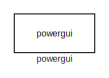
[diagram: root canvas - part 1/2, top left region]
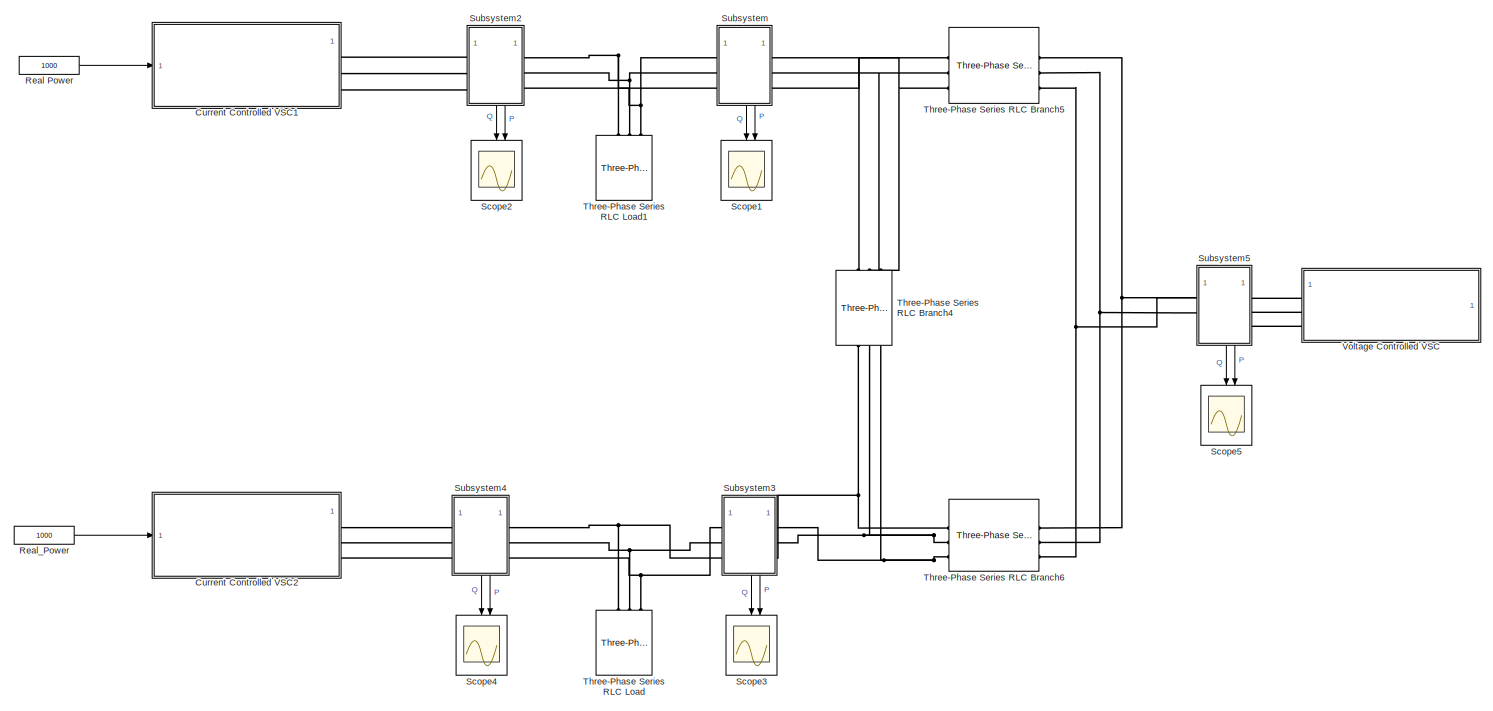
[diagram: root canvas - part 2/2, bottom right region]
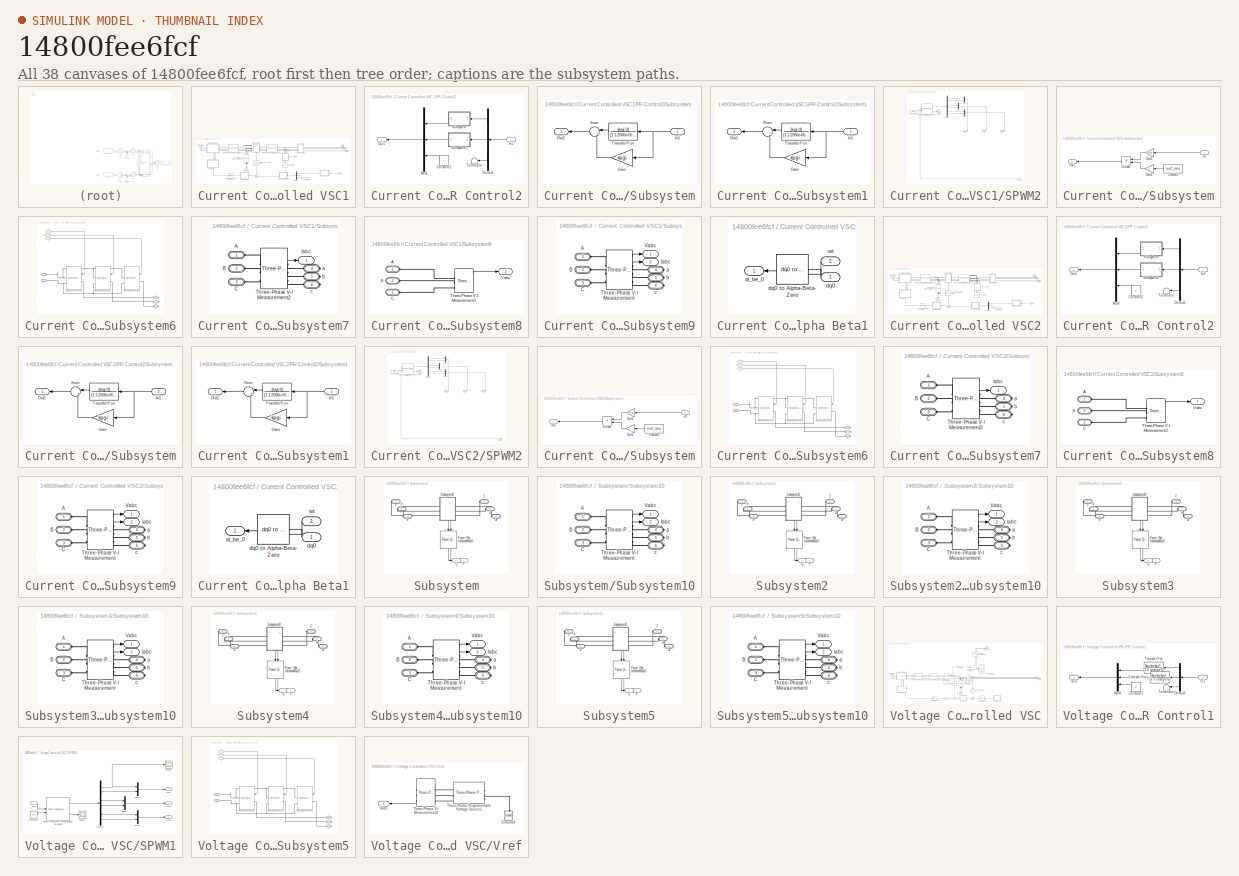
[diagram: thumbnail index - all 38 canvases of the model, root first then tree order]
MODEL slx_14800fee6fcf
KIND model
CONFIG AbsTol = auto
CONFIG EnableMultiTasking = off
CONFIG FixedStep = 1e-6
CONFIG MaxStep = auto
CONFIG MinStep = auto
CONFIG RelTol = 1e-3
CONFIG SampleTimeConstraint = Unconstrained
CONFIG SolverName = ode4
CONFIG StartTime = 0.0
CONFIG StopTime = 0.8
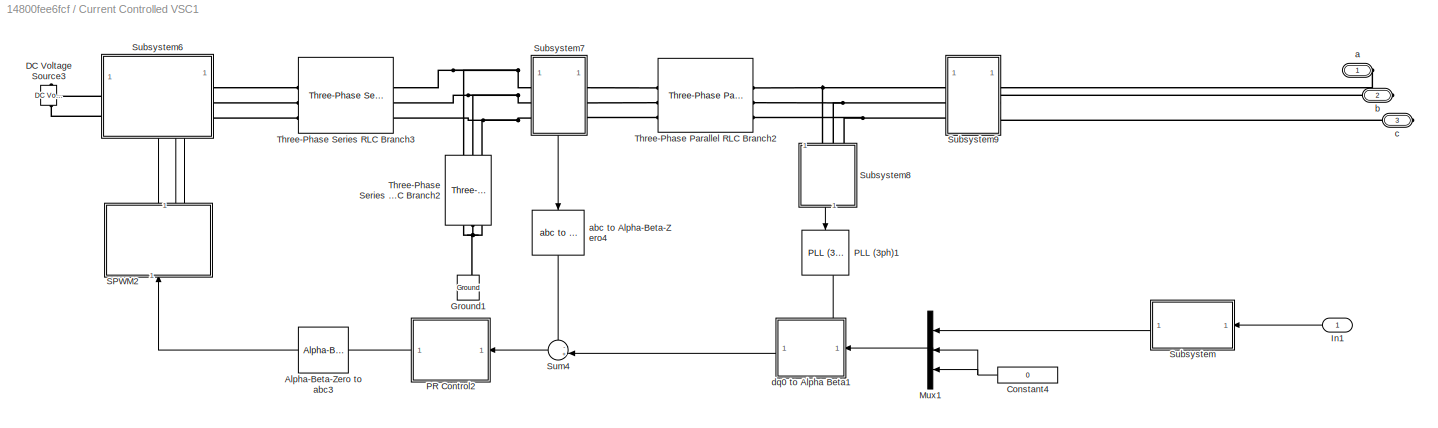
BLOCK [SubSystem] Current Controlled VSC1
BLOCK [Reference] Current Controlled VSC1/Alpha-Beta-Zero to abc3  REF=spsAlphaBetaZerotoabcLib/Alpha-Beta-Zero
to abc
  LibrarySourceBlock = sps_lib/Control/Alpha-Beta-Zero\nto abc
  NameLocation = top
  SourceBlock = spsAlphaBetaZerotoabcLib/Alpha-Beta-Zero\nto abc
  SourceType = Alpha-Beta-Zero to abc Transformation
BLOCK [Constant] Current Controlled VSC1/Constant4
  NameLocation = top
  Value = 0
BLOCK [Reference] Current Controlled VSC1/DC Voltage Source3  REF=spsDCVoltageSourceLib/DC Voltage Source
  LibrarySourceBlock = sps_lib/Sources/DC Voltage Source
  SourceBlock = spsDCVoltageSourceLib/DC Voltage Source
  SourceType = DC Voltage Source
BLOCK [Reference] Current Controlled VSC1/Ground1  REF=spsGroundLib/Ground
  LibrarySourceBlock = sps_lib/Utilities/Ground
  NameLocation = right
  SourceBlock = spsGroundLib/Ground
  SourceType = Ground
BLOCK [Inport] Current Controlled VSC1/In1
BLOCK [Mux] Current Controlled VSC1/Mux1
  DisplayOption = bar
  Inputs = 3
  NameLocation = top
BLOCK [Reference] Current Controlled VSC1/PLL (3ph)1  REF=spsPLL3phLib/PLL
(3ph)
  LibrarySourceBlock = sps_lib/Control/PLL\n(3ph)
  NameLocation = left
  SourceBlock = spsPLL3phLib/PLL\n(3ph)
  SourceType = PLL (3ph)
BLOCK [SubSystem] Current Controlled VSC1/PR Control2
  NameLocation = top
BLOCK [Constant] Current Controlled VSC1/PR Control2/Constant2
  NameLocation = top
  Value = 0
BLOCK [Demux] Current Controlled VSC1/PR Control2/Demux3
  NameLocation = top
  Outputs = 3
BLOCK [Inport] Current Controlled VSC1/PR Control2/In1
BLOCK [Mux] Current Controlled VSC1/PR Control2/Mux4
  DisplayOption = bar
  Inputs = 3
  NameLocation = top
BLOCK [Outport] Current Controlled VSC1/PR Control2/Out1
BLOCK [SubSystem] Current Controlled VSC1/PR Control2/Subsystem
  NameLocation = top
BLOCK [Gain] Current Controlled VSC1/PR Control2/Subsystem/Gain
  Gain = kpgi
  NameLocation = top
BLOCK [Inport] Current Controlled VSC1/PR Control2/Subsystem/In1
BLOCK [Outport] Current Controlled VSC1/PR Control2/Subsystem/Out1
BLOCK [Sum] Current Controlled VSC1/PR Control2/Subsystem/Sum
  Inputs = |++
  NameLocation = top
BLOCK [TransferFcn] Current Controlled VSC1/PR Control2/Subsystem/Transfer Fcn
  Denominator = [1 1.2566e-05 omega^2]
  NameLocation = top
  Numerator = [krgi 0]
BLOCK [SubSystem] Current Controlled VSC1/PR Control2/Subsystem1
  NameLocation = top
BLOCK [Gain] Current Controlled VSC1/PR Control2/Subsystem1/Gain
  Gain = kpgi
  NameLocation = top
BLOCK [Inport] Current Controlled VSC1/PR Control2/Subsystem1/In1
BLOCK [Outport] Current Controlled VSC1/PR Control2/Subsystem1/Out1
BLOCK [Sum] Current Controlled VSC1/PR Control2/Subsystem1/Sum
  Inputs = |++
  NameLocation = top
BLOCK [TransferFcn] Current Controlled VSC1/PR Control2/Subsystem1/Transfer Fcn
  Denominator = [1 1.2566e-05 omega^2]
  NameLocation = top
  Numerator = [krgi 0]
BLOCK [Terminator] Current Controlled VSC1/PR Control2/Terminator
  NameLocation = top
BLOCK [SubSystem] Current Controlled VSC1/SPWM2
  NameLocation = right
BLOCK [Constant] Current Controlled VSC1/SPWM2/Constant3
  Value = 600
BLOCK [Demux] Current Controlled VSC1/SPWM2/Demux
  Outputs = 6
BLOCK [Mux] Current Controlled VSC1/SPWM2/Mux1
  DisplayOption = bar
  Inputs = 2
BLOCK [Mux] Current Controlled VSC1/SPWM2/Mux2
  DisplayOption = bar
  Inputs = 2
BLOCK [Mux] Current Controlled VSC1/SPWM2/Mux3
  DisplayOption = bar
  Inputs = 2
BLOCK [Outport] Current Controlled VSC1/SPWM2/Out1
BLOCK [Outport] Current Controlled VSC1/SPWM2/Out2
  Port = 2
BLOCK [Outport] Current Controlled VSC1/SPWM2/Out3
  Port = 3
BLOCK [Reference] Current Controlled VSC1/SPWM2/PWM Generator (Three-phase, Two-level)  REF=eePwmGeneratorTwoLevel/PWM Generator
(Three-phase, Two-level)
  LibrarySourceBlock = ee_sl_lib/Pulse Width\nModulation/PWM Generator\n(Three-phase, Two-level)
  SourceBlock = eePwmGeneratorTwoLevel/PWM Generator\n(Three-phase, Two-level)
  SourceType = PWM Generator (three-phase, two-level)
BLOCK [Scope] Current Controlled VSC1/SPWM2/Scope1
  Floating = off
  NumInputPorts = 1
  ScopeSpecificationString = Simulink.scopes.TimeScopeBlockCfg('CurrentConfiguration', extmgr.ConfigurationSet(extmgr.Configuration('Core','General UI',true),extmgr.Configuration('Core','Source UI',true),extmgr.Configuration('Sources','WiredSimulink',true,'DataLoggingVariableName','ScopeData1'),extmgr.Configuration('Visuals','Time Domain',true,'SerializedDisplays',{struct('MinYLimReal','-1.07185','MaxYLimReal','1.0145','YLabe...<+1539ch>
BLOCK [Inport] Current Controlled VSC1/SPWM2/Vabc
BLOCK [SubSystem] Current Controlled VSC1/Subsystem
  NameLocation = top
BLOCK [Constant] Current Controlled VSC1/Subsystem/Constant5
  NameLocation = top
  Value = vref_rms
BLOCK [Product] Current Controlled VSC1/Subsystem/Divide1
  Inputs = */
  NameLocation = top
BLOCK [Gain] Current Controlled VSC1/Subsystem/Gain2
  Gain = 3
  NameLocation = top
BLOCK [Gain] Current Controlled VSC1/Subsystem/Gain3
  Gain = 975/400
  NameLocation = top
BLOCK [Inport] Current Controlled VSC1/Subsystem/In1
BLOCK [Outport] Current Controlled VSC1/Subsystem/Out1
BLOCK [SubSystem] Current Controlled VSC1/Subsystem6
  PortSchema = {"entries":[{"content":{"sides":[{"content":{"connectorIds":["LConn1","LConn2"]},"type":"ConnectorPlacement.EquallySpacedRectSide","uuid":"21765539-0567-4900-b052-fb0c809e49e6"},{"content":{"connectorIds":["RConn1","RConn2","RConn3"],"side":"RIGHT"},"type":"ConnectorPlacement.EquallySpacedRectSide","uuid":"da60e673-aefd-4ef6-b5b1-e42a137712f7"},{"content":{"side":"TOP"},"type":"ConnectorPlacement....<+415ch>  <repeated x3 — deduplicated; at blocks: Subsystem6, Subsystem5>
BLOCK [Inport] Current Controlled VSC1/Subsystem6/  2
  Port = 2
BLOCK [Inport] Current Controlled VSC1/Subsystem6/  3
  Port = 3
BLOCK [Inport] Current Controlled VSC1/Subsystem6/ 1 
BLOCK [PMIOPort] Current Controlled VSC1/Subsystem6/+
  Side = Left
BLOCK [PMIOPort] Current Controlled VSC1/Subsystem6/-
  Port = 2
  Side = Left
BLOCK [PMIOPort] Current Controlled VSC1/Subsystem6/1
  Port = 3
  Side = Right
BLOCK [PMIOPort] Current Controlled VSC1/Subsystem6/2
  Port = 4
  Side = Right
BLOCK [PMIOPort] Current Controlled VSC1/Subsystem6/3
  Port = 5
  Side = Right
BLOCK [Reference] Current Controlled VSC1/Subsystem6/Half-Bridge Converter  REF=spsHalfBridgeConverterLib/Half-Bridge Converter
  LibrarySourceBlock = sps_lib/Power Electronics/Half-Bridge Converter
  SourceBlock = spsHalfBridgeConverterLib/Half-Bridge Converter
  SourceType = Half-Bridge Converter
BLOCK [Reference] Current Controlled VSC1/Subsystem6/Half-Bridge Converter1  REF=spsHalfBridgeConverterLib/Half-Bridge Converter
  LibrarySourceBlock = sps_lib/Power Electronics/Half-Bridge Converter
  SourceBlock = spsHalfBridgeConverterLib/Half-Bridge Converter
  SourceType = Half-Bridge Converter
BLOCK [Reference] Current Controlled VSC1/Subsystem6/Half-Bridge Converter2  REF=spsHalfBridgeConverterLib/Half-Bridge Converter
  LibrarySourceBlock = sps_lib/Power Electronics/Half-Bridge Converter
  SourceBlock = spsHalfBridgeConverterLib/Half-Bridge Converter
  SourceType = Half-Bridge Converter
BLOCK [SubSystem] Current Controlled VSC1/Subsystem7
  PortSchema = {"entries":[{"content":{"sides":[{"content":{"connectorIds":["LConn1","LConn2","LConn3"]},"type":"ConnectorPlacement.EquallySpacedRectSide","uuid":"5e649b81-8d67-47fb-b51d-7fa1d294a0fa"},{"content":{"connectorIds":["RConn1","RConn2","RConn3"],"side":"RIGHT"},"type":"ConnectorPlacement.EquallySpacedRectSide","uuid":"b8ce6232-1e24-4620-bb1d-7a04b9b53c9d"},{"content":{"side":"TOP"},"type":"ConnectorP...<+413ch>
BLOCK [PMIOPort] Current Controlled VSC1/Subsystem7/A
  Side = Left
BLOCK [PMIOPort] Current Controlled VSC1/Subsystem7/B
  Port = 2
  Side = Left
BLOCK [PMIOPort] Current Controlled VSC1/Subsystem7/C
  Port = 3
  Side = Left
BLOCK [Outport] Current Controlled VSC1/Subsystem7/Iabc
BLOCK [Reference] Current Controlled VSC1/Subsystem7/Three-Phase V-I Measurement2  REF=spsThreePhaseVIMeasurementLib/Three-Phase
V-I Measurement
  LibrarySourceBlock = sps_lib/Sensors and Measurements/Three-Phase\nV-I Measurement
  SourceBlock = spsThreePhaseVIMeasurementLib/Three-Phase\nV-I Measurement
  SourceType = Three-Phase VI Measurement
BLOCK [PMIOPort] Current Controlled VSC1/Subsystem7/a
  Port = 4
  Side = Right
BLOCK [PMIOPort] Current Controlled VSC1/Subsystem7/b
  Port = 5
  Side = Right
BLOCK [PMIOPort] Current Controlled VSC1/Subsystem7/c
  Port = 6
  Side = Right
BLOCK [SubSystem] Current Controlled VSC1/Subsystem8
BLOCK [PMIOPort] Current Controlled VSC1/Subsystem8/A
  Side = Left
BLOCK [PMIOPort] Current Controlled VSC1/Subsystem8/B
  Port = 2
  Side = Left
BLOCK [PMIOPort] Current Controlled VSC1/Subsystem8/C
  Port = 3
  Side = Left
BLOCK [Reference] Current Controlled VSC1/Subsystem8/Three-Phase V-I Measurement3  REF=spsThreePhaseVIMeasurementLib/Three-Phase
V-I Measurement
  LibrarySourceBlock = sps_lib/Sensors and Measurements/Three-Phase\nV-I Measurement
  SourceBlock = spsThreePhaseVIMeasurementLib/Three-Phase\nV-I Measurement
  SourceType = Three-Phase VI Measurement
BLOCK [Outport] Current Controlled VSC1/Subsystem8/Vabc
BLOCK [SubSystem] Current Controlled VSC1/Subsystem9
  PortSchema = {"entries":[{"content":{"sides":[{"content":{"connectorIds":["LConn1","LConn2","LConn3"]},"type":"ConnectorPlacement.EquallySpacedRectSide","uuid":"5e649b81-8d67-47fb-b51d-7fa1d294a0fa"},{"content":{"connectorIds":["RConn1","RConn2","RConn3"],"side":"RIGHT"},"type":"ConnectorPlacement.EquallySpacedRectSide","uuid":"b8ce6232-1e24-4620-bb1d-7a04b9b53c9d"},{"content":{"connectorIds":["Out1","Out2"],"...<+294ch>  <repeated x7 — deduplicated; at blocks: Subsystem9, Subsystem10>
BLOCK [PMIOPort] Current Controlled VSC1/Subsystem9/A
  Side = Left
BLOCK [PMIOPort] Current Controlled VSC1/Subsystem9/B
  Port = 2
  Side = Left
BLOCK [PMIOPort] Current Controlled VSC1/Subsystem9/C
  Port = 3
  Side = Left
BLOCK [Outport] Current Controlled VSC1/Subsystem9/Iabc
  Port = 2
BLOCK [Reference] Current Controlled VSC1/Subsystem9/Three-Phase V-I Measurement  REF=spsThreePhaseVIMeasurementLib/Three-Phase
V-I Measurement
  LibrarySourceBlock = sps_lib/Sensors and Measurements/Three-Phase\nV-I Measurement
  SourceBlock = spsThreePhaseVIMeasurementLib/Three-Phase\nV-I Measurement
  SourceType = Three-Phase VI Measurement
BLOCK [Outport] Current Controlled VSC1/Subsystem9/Vabc
BLOCK [PMIOPort] Current Controlled VSC1/Subsystem9/a
  Port = 4
  Side = Right
BLOCK [PMIOPort] Current Controlled VSC1/Subsystem9/b
  Port = 5
  Side = Right
BLOCK [PMIOPort] Current Controlled VSC1/Subsystem9/c
  Port = 6
  Side = Right
BLOCK [Sum] Current Controlled VSC1/Sum4
  Inputs = -+|
  NameLocation = top
BLOCK [Reference] Current Controlled VSC1/Three-Phase Parallel RLC Branch2  REF=spsThreePhaseParallelRLCBranchLib/Three-Phase
Parallel RLC Branch
  AttributesFormatString = \n
  LibrarySourceBlock = sps_lib/Passives/Three-Phase\nParallel RLC Branch
  SourceBlock = spsThreePhaseParallelRLCBranchLib/Three-Phase\nParallel RLC Branch
  SourceType = Three-Phase Parallel RLC Branch
BLOCK [Reference] Current Controlled VSC1/Three-Phase Series RLC Branch2  REF=spsThreePhaseSeriesRLCBranchLib/Three-Phase
Series RLC Branch
  AttributesFormatString = \n
  LibrarySourceBlock = sps_lib/Passives/Three-Phase\nSeries RLC Branch
  NameLocation = left
  SourceBlock = spsThreePhaseSeriesRLCBranchLib/Three-Phase\nSeries RLC Branch
  SourceType = Three-Phase Series RLC Branch
BLOCK [Reference] Current Controlled VSC1/Three-Phase Series RLC Branch3  REF=spsThreePhaseSeriesRLCBranchLib/Three-Phase
Series RLC Branch
  AttributesFormatString = \n
  LibrarySourceBlock = sps_lib/Passives/Three-Phase\nSeries RLC Branch
  SourceBlock = spsThreePhaseSeriesRLCBranchLib/Three-Phase\nSeries RLC Branch
  SourceType = Three-Phase Series RLC Branch
BLOCK [PMIOPort] Current Controlled VSC1/a
  Side = Right
BLOCK [Reference] Current Controlled VSC1/abc to Alpha-Beta-Zero4  REF=spsabctoAlphaBetaZeroLib/abc to
Alpha-Beta-Zero
  LibrarySourceBlock = sps_lib/Control/abc to\nAlpha-Beta-Zero
  NameLocation = left
  SourceBlock = spsabctoAlphaBetaZeroLib/abc to\nAlpha-Beta-Zero
  SourceType = abc to Alpha-Beta-Zero Transformation
BLOCK [PMIOPort] Current Controlled VSC1/b
  Port = 2
  Side = Right
BLOCK [PMIOPort] Current Controlled VSC1/c
  Port = 3
  Side = Right
BLOCK [SubSystem] Current Controlled VSC1/dq0 to Alpha Beta1
  PortSchema = {"entries":[{"content":{"sides":[{"content":{"connectorIds":["In1"]},"type":"ConnectorPlacement.EquallySpacedRectSide","uuid":"2957cf7a-c1c3-4848-9407-b6952c647f30"},{"content":{"connectorIds":["Out1"],"side":"RIGHT"},"type":"ConnectorPlacement.EquallySpacedRectSide","uuid":"7a8beffb-254d-479d-a697-96ba44ae1442"},{"content":{"connectorIds":["In2"],"side":"TOP"},"type":"ConnectorPlacement.EquallySp...<+245ch>
BLOCK [Outport] Current Controlled VSC1/dq0 to Alpha Beta1/al_be_0
BLOCK [Inport] Current Controlled VSC1/dq0 to Alpha Beta1/dq0
BLOCK [Reference] Current Controlled VSC1/dq0 to Alpha Beta1/dq0 to Alpha-Beta-Zero  REF=spsdq0toAlphaBetaZeroLib/dq0 to
Alpha-Beta-Zero
  LibrarySourceBlock = sps_lib/Control/dq0 to\nAlpha-Beta-Zero
  NameLocation = top
  SourceBlock = spsdq0toAlphaBetaZeroLib/dq0 to\nAlpha-Beta-Zero
  SourceType = dq0 to Alpha-Beta-Zero Transformation
BLOCK [Inport] Current Controlled VSC1/dq0 to Alpha Beta1/wt
  Port = 2
BLOCK [SubSystem] Current Controlled VSC2
BLOCK [Reference] Current Controlled VSC2/Alpha-Beta-Zero to abc3  REF=spsAlphaBetaZerotoabcLib/Alpha-Beta-Zero
to abc
  LibrarySourceBlock = sps_lib/Control/Alpha-Beta-Zero\nto abc
  NameLocation = top
  SourceBlock = spsAlphaBetaZerotoabcLib/Alpha-Beta-Zero\nto abc
  SourceType = Alpha-Beta-Zero to abc Transformation
BLOCK [Constant] Current Controlled VSC2/Constant4
  NameLocation = top
  Value = 0
BLOCK [Reference] Current Controlled VSC2/DC Voltage Source3  REF=spsDCVoltageSourceLib/DC Voltage Source
  LibrarySourceBlock = sps_lib/Sources/DC Voltage Source
  SourceBlock = spsDCVoltageSourceLib/DC Voltage Source
  SourceType = DC Voltage Source
BLOCK [Reference] Current Controlled VSC2/Ground1  REF=spsGroundLib/Ground
  LibrarySourceBlock = sps_lib/Utilities/Ground
  NameLocation = right
  SourceBlock = spsGroundLib/Ground
  SourceType = Ground
BLOCK [Inport] Current Controlled VSC2/In1
BLOCK [Mux] Current Controlled VSC2/Mux1
  DisplayOption = bar
  Inputs = 3
  NameLocation = top
BLOCK [Reference] Current Controlled VSC2/PLL (3ph)1  REF=spsPLL3phLib/PLL
(3ph)
  LibrarySourceBlock = sps_lib/Control/PLL\n(3ph)
  NameLocation = left
  SourceBlock = spsPLL3phLib/PLL\n(3ph)
  SourceType = PLL (3ph)
BLOCK [SubSystem] Current Controlled VSC2/PR Control2
  NameLocation = top
BLOCK [Constant] Current Controlled VSC2/PR Control2/Constant2
  NameLocation = top
  Value = 0
BLOCK [Demux] Current Controlled VSC2/PR Control2/Demux3
  NameLocation = top
  Outputs = 3
BLOCK [Inport] Current Controlled VSC2/PR Control2/In1
BLOCK [Mux] Current Controlled VSC2/PR Control2/Mux4
  DisplayOption = bar
  Inputs = 3
  NameLocation = top
BLOCK [Outport] Current Controlled VSC2/PR Control2/Out1
BLOCK [SubSystem] Current Controlled VSC2/PR Control2/Subsystem
  NameLocation = top
BLOCK [Gain] Current Controlled VSC2/PR Control2/Subsystem/Gain
  Gain = kpgi
  NameLocation = top
BLOCK [Inport] Current Controlled VSC2/PR Control2/Subsystem/In1
BLOCK [Outport] Current Controlled VSC2/PR Control2/Subsystem/Out1
BLOCK [Sum] Current Controlled VSC2/PR Control2/Subsystem/Sum
  Inputs = |++
  NameLocation = top
BLOCK [TransferFcn] Current Controlled VSC2/PR Control2/Subsystem/Transfer Fcn
  Denominator = [1 1.2566e-05 omega^2]
  NameLocation = top
  Numerator = [krgi 0]
BLOCK [SubSystem] Current Controlled VSC2/PR Control2/Subsystem1
  NameLocation = top
BLOCK [Gain] Current Controlled VSC2/PR Control2/Subsystem1/Gain
  Gain = kpgi
  NameLocation = top
BLOCK [Inport] Current Controlled VSC2/PR Control2/Subsystem1/In1
BLOCK [Outport] Current Controlled VSC2/PR Control2/Subsystem1/Out1
BLOCK [Sum] Current Controlled VSC2/PR Control2/Subsystem1/Sum
  Inputs = |++
  NameLocation = top
BLOCK [TransferFcn] Current Controlled VSC2/PR Control2/Subsystem1/Transfer Fcn
  Denominator = [1 1.2566e-05 omega^2]
  NameLocation = top
  Numerator = [krgi 0]
BLOCK [Terminator] Current Controlled VSC2/PR Control2/Terminator
  NameLocation = top
BLOCK [SubSystem] Current Controlled VSC2/SPWM2
  NameLocation = right
BLOCK [Constant] Current Controlled VSC2/SPWM2/Constant3
  Value = 600
BLOCK [Demux] Current Controlled VSC2/SPWM2/Demux
  Outputs = 6
BLOCK [Mux] Current Controlled VSC2/SPWM2/Mux1
  DisplayOption = bar
  Inputs = 2
BLOCK [Mux] Current Controlled VSC2/SPWM2/Mux2
  DisplayOption = bar
  Inputs = 2
BLOCK [Mux] Current Controlled VSC2/SPWM2/Mux3
  DisplayOption = bar
  Inputs = 2
BLOCK [Outport] Current Controlled VSC2/SPWM2/Out1
BLOCK [Outport] Current Controlled VSC2/SPWM2/Out2
  Port = 2
BLOCK [Outport] Current Controlled VSC2/SPWM2/Out3
  Port = 3
BLOCK [Reference] Current Controlled VSC2/SPWM2/PWM Generator (Three-phase, Two-level)  REF=eePwmGeneratorTwoLevel/PWM Generator
(Three-phase, Two-level)
  LibrarySourceBlock = ee_sl_lib/Pulse Width\nModulation/PWM Generator\n(Three-phase, Two-level)
  SourceBlock = eePwmGeneratorTwoLevel/PWM Generator\n(Three-phase, Two-level)
  SourceType = PWM Generator (three-phase, two-level)
BLOCK [Scope] Current Controlled VSC2/SPWM2/Scope1
  Floating = off
  NumInputPorts = 1
  ScopeSpecificationString = Simulink.scopes.TimeScopeBlockCfg('CurrentConfiguration', extmgr.ConfigurationSet(extmgr.Configuration('Core','General UI',true),extmgr.Configuration('Core','Source UI',true),extmgr.Configuration('Sources','WiredSimulink',true,'DataLoggingVariableName','ScopeData1'),extmgr.Configuration('Visuals','Time Domain',true,'SerializedDisplays',{struct('MinYLimReal','-1.07185','MaxYLimReal','1.0145','YLabe...<+1539ch>
BLOCK [Inport] Current Controlled VSC2/SPWM2/Vabc
BLOCK [SubSystem] Current Controlled VSC2/Subsystem
  NameLocation = top
BLOCK [Constant] Current Controlled VSC2/Subsystem/Constant5
  NameLocation = top
  Value = vref_rms
BLOCK [Product] Current Controlled VSC2/Subsystem/Divide1
  Inputs = */
  NameLocation = top
BLOCK [Gain] Current Controlled VSC2/Subsystem/Gain2
  Gain = 3
  NameLocation = top
BLOCK [Gain] Current Controlled VSC2/Subsystem/Gain3
  Gain = 975/400
  NameLocation = top
BLOCK [Inport] Current Controlled VSC2/Subsystem/In1
BLOCK [Outport] Current Controlled VSC2/Subsystem/Out1
BLOCK [SubSystem] Current Controlled VSC2/Subsystem6
BLOCK [Inport] Current Controlled VSC2/Subsystem6/  2
  Port = 2
BLOCK [Inport] Current Controlled VSC2/Subsystem6/  3
  Port = 3
BLOCK [Inport] Current Controlled VSC2/Subsystem6/ 1 
BLOCK [PMIOPort] Current Controlled VSC2/Subsystem6/+
  Side = Left
BLOCK [PMIOPort] Current Controlled VSC2/Subsystem6/-
  Port = 2
  Side = Left
BLOCK [PMIOPort] Current Controlled VSC2/Subsystem6/1
  Port = 3
  Side = Right
BLOCK [PMIOPort] Current Controlled VSC2/Subsystem6/2
  Port = 4
  Side = Right
BLOCK [PMIOPort] Current Controlled VSC2/Subsystem6/3
  Port = 5
  Side = Right
BLOCK [Reference] Current Controlled VSC2/Subsystem6/Half-Bridge Converter  REF=spsHalfBridgeConverterLib/Half-Bridge Converter
  LibrarySourceBlock = sps_lib/Power Electronics/Half-Bridge Converter
  SourceBlock = spsHalfBridgeConverterLib/Half-Bridge Converter
  SourceType = Half-Bridge Converter
BLOCK [Reference] Current Controlled VSC2/Subsystem6/Half-Bridge Converter1  REF=spsHalfBridgeConverterLib/Half-Bridge Converter
  LibrarySourceBlock = sps_lib/Power Electronics/Half-Bridge Converter
  SourceBlock = spsHalfBridgeConverterLib/Half-Bridge Converter
  SourceType = Half-Bridge Converter
BLOCK [Reference] Current Controlled VSC2/Subsystem6/Half-Bridge Converter2  REF=spsHalfBridgeConverterLib/Half-Bridge Converter
  LibrarySourceBlock = sps_lib/Power Electronics/Half-Bridge Converter
  SourceBlock = spsHalfBridgeConverterLib/Half-Bridge Converter
  SourceType = Half-Bridge Converter
BLOCK [SubSystem] Current Controlled VSC2/Subsystem7
  PortSchema = {"entries":[{"content":{"sides":[{"content":{"connectorIds":["LConn1","LConn2","LConn3"]},"type":"ConnectorPlacement.EquallySpacedRectSide","uuid":"5e649b81-8d67-47fb-b51d-7fa1d294a0fa"},{"content":{"connectorIds":["RConn1","RConn2","RConn3"],"side":"RIGHT"},"type":"ConnectorPlacement.EquallySpacedRectSide","uuid":"b8ce6232-1e24-4620-bb1d-7a04b9b53c9d"},{"content":{"side":"TOP"},"type":"ConnectorP...<+413ch>
BLOCK [PMIOPort] Current Controlled VSC2/Subsystem7/A
  Side = Left
BLOCK [PMIOPort] Current Controlled VSC2/Subsystem7/B
  Port = 2
  Side = Left
BLOCK [PMIOPort] Current Controlled VSC2/Subsystem7/C
  Port = 3
  Side = Left
BLOCK [Outport] Current Controlled VSC2/Subsystem7/Iabc
BLOCK [Reference] Current Controlled VSC2/Subsystem7/Three-Phase V-I Measurement2  REF=spsThreePhaseVIMeasurementLib/Three-Phase
V-I Measurement
  LibrarySourceBlock = sps_lib/Sensors and Measurements/Three-Phase\nV-I Measurement
  SourceBlock = spsThreePhaseVIMeasurementLib/Three-Phase\nV-I Measurement
  SourceType = Three-Phase VI Measurement
BLOCK [PMIOPort] Current Controlled VSC2/Subsystem7/a
  Port = 4
  Side = Right
BLOCK [PMIOPort] Current Controlled VSC2/Subsystem7/b
  Port = 5
  Side = Right
BLOCK [PMIOPort] Current Controlled VSC2/Subsystem7/c
  Port = 6
  Side = Right
BLOCK [SubSystem] Current Controlled VSC2/Subsystem8
BLOCK [PMIOPort] Current Controlled VSC2/Subsystem8/A
  Side = Left
BLOCK [PMIOPort] Current Controlled VSC2/Subsystem8/B
  Port = 2
  Side = Left
BLOCK [PMIOPort] Current Controlled VSC2/Subsystem8/C
  Port = 3
  Side = Left
BLOCK [Reference] Current Controlled VSC2/Subsystem8/Three-Phase V-I Measurement3  REF=spsThreePhaseVIMeasurementLib/Three-Phase
V-I Measurement
  LibrarySourceBlock = sps_lib/Sensors and Measurements/Three-Phase\nV-I Measurement
  SourceBlock = spsThreePhaseVIMeasurementLib/Three-Phase\nV-I Measurement
  SourceType = Three-Phase VI Measurement
BLOCK [Outport] Current Controlled VSC2/Subsystem8/Vabc
BLOCK [SubSystem] Current Controlled VSC2/Subsystem9
BLOCK [PMIOPort] Current Controlled VSC2/Subsystem9/A
  Side = Left
BLOCK [PMIOPort] Current Controlled VSC2/Subsystem9/B
  Port = 2
  Side = Left
BLOCK [PMIOPort] Current Controlled VSC2/Subsystem9/C
  Port = 3
  Side = Left
BLOCK [Outport] Current Controlled VSC2/Subsystem9/Iabc
  Port = 2
BLOCK [Reference] Current Controlled VSC2/Subsystem9/Three-Phase V-I Measurement  REF=spsThreePhaseVIMeasurementLib/Three-Phase
V-I Measurement
  LibrarySourceBlock = sps_lib/Sensors and Measurements/Three-Phase\nV-I Measurement
  SourceBlock = spsThreePhaseVIMeasurementLib/Three-Phase\nV-I Measurement
  SourceType = Three-Phase VI Measurement
BLOCK [Outport] Current Controlled VSC2/Subsystem9/Vabc
BLOCK [PMIOPort] Current Controlled VSC2/Subsystem9/a
  Port = 4
  Side = Right
BLOCK [PMIOPort] Current Controlled VSC2/Subsystem9/b
  Port = 5
  Side = Right
BLOCK [PMIOPort] Current Controlled VSC2/Subsystem9/c
  Port = 6
  Side = Right
BLOCK [Sum] Current Controlled VSC2/Sum4
  Inputs = -+|
  NameLocation = top
BLOCK [Reference] Current Controlled VSC2/Three-Phase Parallel RLC Branch2  REF=spsThreePhaseParallelRLCBranchLib/Three-Phase
Parallel RLC Branch
  AttributesFormatString = \n
  LibrarySourceBlock = sps_lib/Passives/Three-Phase\nParallel RLC Branch
  SourceBlock = spsThreePhaseParallelRLCBranchLib/Three-Phase\nParallel RLC Branch
  SourceType = Three-Phase Parallel RLC Branch
BLOCK [Reference] Current Controlled VSC2/Three-Phase Series RLC Branch2  REF=spsThreePhaseSeriesRLCBranchLib/Three-Phase
Series RLC Branch
  AttributesFormatString = \n
  LibrarySourceBlock = sps_lib/Passives/Three-Phase\nSeries RLC Branch
  NameLocation = left
  SourceBlock = spsThreePhaseSeriesRLCBranchLib/Three-Phase\nSeries RLC Branch
  SourceType = Three-Phase Series RLC Branch
BLOCK [Reference] Current Controlled VSC2/Three-Phase Series RLC Branch3  REF=spsThreePhaseSeriesRLCBranchLib/Three-Phase
Series RLC Branch
  AttributesFormatString = \n
  LibrarySourceBlock = sps_lib/Passives/Three-Phase\nSeries RLC Branch
  SourceBlock = spsThreePhaseSeriesRLCBranchLib/Three-Phase\nSeries RLC Branch
  SourceType = Three-Phase Series RLC Branch
BLOCK [PMIOPort] Current Controlled VSC2/a
  Side = Right
BLOCK [Reference] Current Controlled VSC2/abc to Alpha-Beta-Zero4  REF=spsabctoAlphaBetaZeroLib/abc to
Alpha-Beta-Zero
  LibrarySourceBlock = sps_lib/Control/abc to\nAlpha-Beta-Zero
  NameLocation = left
  SourceBlock = spsabctoAlphaBetaZeroLib/abc to\nAlpha-Beta-Zero
  SourceType = abc to Alpha-Beta-Zero Transformation
BLOCK [PMIOPort] Current Controlled VSC2/b
  Port = 2
  Side = Right
BLOCK [PMIOPort] Current Controlled VSC2/c
  Port = 3
  Side = Right
BLOCK [SubSystem] Current Controlled VSC2/dq0 to Alpha Beta1
  PortSchema = {"entries":[{"content":{"sides":[{"content":{"connectorIds":["In1"]},"type":"ConnectorPlacement.EquallySpacedRectSide","uuid":"2957cf7a-c1c3-4848-9407-b6952c647f30"},{"content":{"connectorIds":["Out1"],"side":"RIGHT"},"type":"ConnectorPlacement.EquallySpacedRectSide","uuid":"7a8beffb-254d-479d-a697-96ba44ae1442"},{"content":{"connectorIds":["In2"],"side":"TOP"},"type":"ConnectorPlacement.EquallySp...<+245ch>
BLOCK [Outport] Current Controlled VSC2/dq0 to Alpha Beta1/al_be_0
BLOCK [Inport] Current Controlled VSC2/dq0 to Alpha Beta1/dq0
BLOCK [Reference] Current Controlled VSC2/dq0 to Alpha Beta1/dq0 to Alpha-Beta-Zero  REF=spsdq0toAlphaBetaZeroLib/dq0 to
Alpha-Beta-Zero
  LibrarySourceBlock = sps_lib/Control/dq0 to\nAlpha-Beta-Zero
  NameLocation = top
  SourceBlock = spsdq0toAlphaBetaZeroLib/dq0 to\nAlpha-Beta-Zero
  SourceType = dq0 to Alpha-Beta-Zero Transformation
BLOCK [Inport] Current Controlled VSC2/dq0 to Alpha Beta1/wt
  Port = 2
BLOCK [Constant] Real Power
  Value = 1000
BLOCK [Constant] Real_Power
  Value = 1000
BLOCK [Scope] Scope1
  Floating = off
  NameLocation = left
  NumInputPorts = 2
  ScopeSpecificationString = Simulink.scopes.TimeScopeBlockCfg('CurrentConfiguration', extmgr.ConfigurationSet(extmgr.Configuration('Core','General UI',true),extmgr.Configuration('Core','Source UI',true),extmgr.Configuration('Sources','WiredSimulink',true,'DataLoggingVariableName','ScopeData2'),extmgr.Configuration('Visuals','Time Domain',true,'SerializedDisplays',{struct('MinYLimReal','-1749.49337','MaxYLimReal','1852.63883'...<+1771ch>
BLOCK [Scope] Scope2
  Floating = off
  NameLocation = left
  NumInputPorts = 2
  ScopeSpecificationString = Simulink.scopes.TimeScopeBlockCfg('CurrentConfiguration', extmgr.ConfigurationSet(extmgr.Configuration('Core','General UI',true),extmgr.Configuration('Core','Source UI',true),extmgr.Configuration('Sources','WiredSimulink',true,'DataLoggingVariableName','ScopeData3'),extmgr.Configuration('Visuals','Time Domain',true,'SerializedDisplays',{struct('MinYLimReal','-5396.67925','MaxYLimReal','3263.0725',...<+1433ch>
BLOCK [Scope] Scope3
  Floating = off
  NameLocation = left
  NumInputPorts = 2
  ScopeSpecificationString = Simulink.scopes.TimeScopeBlockCfg('CurrentConfiguration', extmgr.ConfigurationSet(extmgr.Configuration('Core','General UI',true),extmgr.Configuration('Core','Source UI',true),extmgr.Configuration('Sources','WiredSimulink',true,'DataLoggingVariableName','ScopeData5'),extmgr.Configuration('Visuals','Time Domain',true,'SerializedDisplays',{struct('MinYLimReal','-5396.67925','MaxYLimReal','3263.0725',...<+1825ch>
BLOCK [Scope] Scope4
  Floating = off
  NameLocation = left
  NumInputPorts = 2
  ScopeSpecificationString = Simulink.scopes.TimeScopeBlockCfg('CurrentConfiguration', extmgr.ConfigurationSet(extmgr.Configuration('Core','General UI',true),extmgr.Configuration('Core','Source UI',true),extmgr.Configuration('Sources','WiredSimulink',true,'DataLoggingVariableName','ScopeData6'),extmgr.Configuration('Visuals','Time Domain',true,'SerializedDisplays',{struct('MinYLimReal','-5396.67925','MaxYLimReal','3263.0725',...<+1825ch>
BLOCK [Scope] Scope5
  Floating = off
  NameLocation = left
  NumInputPorts = 2
  ScopeSpecificationString = Simulink.scopes.TimeScopeBlockCfg('CurrentConfiguration', extmgr.ConfigurationSet(extmgr.Configuration('Core','General UI',true),extmgr.Configuration('Core','Source UI',true),extmgr.Configuration('Sources','WiredSimulink',true,'DataLoggingVariableName','ScopeData7'),extmgr.Configuration('Visuals','Time Domain',true,'SerializedDisplays',{struct('MinYLimReal','-13360.33287','MaxYLimReal','11914.9067...<+1779ch>
BLOCK [SubSystem] Subsystem
  NameLocation = top
  PortSchema = {"entries":[{"content":{"sides":[{"content":{"connectorIds":["LConn1","LConn2","LConn3"]},"type":"ConnectorPlacement.EquallySpacedRectSide","uuid":"955e9456-33e7-4503-a1c1-a41c88bb3772"},{"content":{"connectorIds":["RConn1","RConn2","RConn3"],"side":"RIGHT"},"type":"ConnectorPlacement.EquallySpacedRectSide","uuid":"f38de2c4-935d-4540-b4e6-45221c91d1e6"},{"content":{"connectorIds":["Out1","Out2"],"...<+420ch>  <repeated x3 — deduplicated; at blocks: Subsystem, Subsystem3, Subsystem5>
BLOCK [PMIOPort] Subsystem/A
  Side = Left
BLOCK [PMIOPort] Subsystem/B
  Port = 2
  Side = Left
BLOCK [PMIOPort] Subsystem/C
  Port = 3
  Side = Left
BLOCK [Outport] Subsystem/P
BLOCK [Reference] Subsystem/Power (3ph, Instantaneous)5  REF=spsPower3phInstantaneousLib/Power
(3ph, Instantaneous)
  LibrarySourceBlock = sps_lib/Sensors and Measurements/Power\n(3ph, Instantaneous)
  NameLocation = left
  SourceBlock = spsPower3phInstantaneousLib/Power\n(3ph, Instantaneous)
  SourceType = Power (3ph, Instantaneous)
BLOCK [Outport] Subsystem/Q
  Port = 2
BLOCK [SubSystem] Subsystem/Subsystem10
  NameLocation = top
BLOCK [PMIOPort] Subsystem/Subsystem10/A
  Side = Left
BLOCK [PMIOPort] Subsystem/Subsystem10/B
  Port = 2
  Side = Left
BLOCK [PMIOPort] Subsystem/Subsystem10/C
  Port = 3
  Side = Left
BLOCK [Outport] Subsystem/Subsystem10/Iabc
  Port = 2
BLOCK [Reference] Subsystem/Subsystem10/Three-Phase V-I Measurement  REF=spsThreePhaseVIMeasurementLib/Three-Phase
V-I Measurement
  LibrarySourceBlock = sps_lib/Sensors and Measurements/Three-Phase\nV-I Measurement
  SourceBlock = spsThreePhaseVIMeasurementLib/Three-Phase\nV-I Measurement
  SourceType = Three-Phase VI Measurement
BLOCK [Outport] Subsystem/Subsystem10/Vabc
BLOCK [PMIOPort] Subsystem/Subsystem10/a
  Port = 4
  Side = Right
BLOCK [PMIOPort] Subsystem/Subsystem10/b
  Port = 5
  Side = Right
BLOCK [PMIOPort] Subsystem/Subsystem10/c
  Port = 6
  Side = Right
BLOCK [PMIOPort] Subsystem/a
  Port = 4
  Side = Right
BLOCK [PMIOPort] Subsystem/b
  Port = 5
  Side = Right
BLOCK [PMIOPort] Subsystem/c
  Port = 6
  Side = Right
BLOCK [SubSystem] Subsystem2
  PortSchema = {"entries":[{"content":{"sides":[{"content":{"connectorIds":["LConn1","LConn2","LConn3"]},"type":"ConnectorPlacement.EquallySpacedRectSide","uuid":"955e9456-33e7-4503-a1c1-a41c88bb3772"},{"content":{"connectorIds":["RConn1","RConn2","RConn3"],"side":"RIGHT"},"type":"ConnectorPlacement.EquallySpacedRectSide","uuid":"f38de2c4-935d-4540-b4e6-45221c91d1e6"},{"content":{"side":"TOP"},"type":"ConnectorP...<+420ch>
BLOCK [PMIOPort] Subsystem2/A
  Side = Left
BLOCK [PMIOPort] Subsystem2/B
  Port = 2
  Side = Left
BLOCK [PMIOPort] Subsystem2/C
  Port = 3
  Side = Left
BLOCK [Outport] Subsystem2/P
  Port = 2
BLOCK [Reference] Subsystem2/Power (3ph, Instantaneous)5  REF=spsPower3phInstantaneousLib/Power
(3ph, Instantaneous)
  LibrarySourceBlock = sps_lib/Sensors and Measurements/Power\n(3ph, Instantaneous)
  NameLocation = left
  SourceBlock = spsPower3phInstantaneousLib/Power\n(3ph, Instantaneous)
  SourceType = Power (3ph, Instantaneous)
BLOCK [Outport] Subsystem2/Q
BLOCK [SubSystem] Subsystem2/Subsystem10
  NameLocation = top
BLOCK [PMIOPort] Subsystem2/Subsystem10/A
  Side = Left
BLOCK [PMIOPort] Subsystem2/Subsystem10/B
  Port = 2
  Side = Left
BLOCK [PMIOPort] Subsystem2/Subsystem10/C
  Port = 3
  Side = Left
BLOCK [Outport] Subsystem2/Subsystem10/Iabc
  Port = 2
BLOCK [Reference] Subsystem2/Subsystem10/Three-Phase V-I Measurement  REF=spsThreePhaseVIMeasurementLib/Three-Phase
V-I Measurement
  LibrarySourceBlock = sps_lib/Sensors and Measurements/Three-Phase\nV-I Measurement
  SourceBlock = spsThreePhaseVIMeasurementLib/Three-Phase\nV-I Measurement
  SourceType = Three-Phase VI Measurement
BLOCK [Outport] Subsystem2/Subsystem10/Vabc
BLOCK [PMIOPort] Subsystem2/Subsystem10/a
  Port = 4
  Side = Right
BLOCK [PMIOPort] Subsystem2/Subsystem10/b
  Port = 5
  Side = Right
BLOCK [PMIOPort] Subsystem2/Subsystem10/c
  Port = 6
  Side = Right
BLOCK [PMIOPort] Subsystem2/a
  Port = 4
  Side = Right
BLOCK [PMIOPort] Subsystem2/b
  Port = 5
  Side = Right
BLOCK [PMIOPort] Subsystem2/c
  Port = 6
  Side = Right
BLOCK [SubSystem] Subsystem3
  NameLocation = top
BLOCK [PMIOPort] Subsystem3/A
  Side = Left
BLOCK [PMIOPort] Subsystem3/B
  Port = 2
  Side = Left
BLOCK [PMIOPort] Subsystem3/C
  Port = 3
  Side = Left
BLOCK [Outport] Subsystem3/P
BLOCK [Reference] Subsystem3/Power (3ph, Instantaneous)5  REF=spsPower3phInstantaneousLib/Power
(3ph, Instantaneous)
  LibrarySourceBlock = sps_lib/Sensors and Measurements/Power\n(3ph, Instantaneous)
  NameLocation = left
  SourceBlock = spsPower3phInstantaneousLib/Power\n(3ph, Instantaneous)
  SourceType = Power (3ph, Instantaneous)
BLOCK [Outport] Subsystem3/Q
  Port = 2
BLOCK [SubSystem] Subsystem3/Subsystem10
  NameLocation = top
BLOCK [PMIOPort] Subsystem3/Subsystem10/A
  Side = Left
BLOCK [PMIOPort] Subsystem3/Subsystem10/B
  Port = 2
  Side = Left
BLOCK [PMIOPort] Subsystem3/Subsystem10/C
  Port = 3
  Side = Left
BLOCK [Outport] Subsystem3/Subsystem10/Iabc
  Port = 2
BLOCK [Reference] Subsystem3/Subsystem10/Three-Phase V-I Measurement  REF=spsThreePhaseVIMeasurementLib/Three-Phase
V-I Measurement
  LibrarySourceBlock = sps_lib/Sensors and Measurements/Three-Phase\nV-I Measurement
  SourceBlock = spsThreePhaseVIMeasurementLib/Three-Phase\nV-I Measurement
  SourceType = Three-Phase VI Measurement
BLOCK [Outport] Subsystem3/Subsystem10/Vabc
BLOCK [PMIOPort] Subsystem3/Subsystem10/a
  Port = 4
  Side = Right
BLOCK [PMIOPort] Subsystem3/Subsystem10/b
  Port = 5
  Side = Right
BLOCK [PMIOPort] Subsystem3/Subsystem10/c
  Port = 6
  Side = Right
BLOCK [PMIOPort] Subsystem3/a
  Port = 4
  Side = Right
BLOCK [PMIOPort] Subsystem3/b
  Port = 5
  Side = Right
BLOCK [PMIOPort] Subsystem3/c
  Port = 6
  Side = Right
BLOCK [SubSystem] Subsystem4
  PortSchema = {"entries":[{"content":{"sides":[{"content":{"connectorIds":["LConn1","LConn2","LConn3"]},"type":"ConnectorPlacement.EquallySpacedRectSide","uuid":"955e9456-33e7-4503-a1c1-a41c88bb3772"},{"content":{"connectorIds":["RConn1","RConn2","RConn3"],"side":"RIGHT"},"type":"ConnectorPlacement.EquallySpacedRectSide","uuid":"f38de2c4-935d-4540-b4e6-45221c91d1e6"},{"content":{"side":"TOP"},"type":"ConnectorP...<+420ch>
BLOCK [PMIOPort] Subsystem4/A
  Side = Left
BLOCK [PMIOPort] Subsystem4/B
  Port = 2
  Side = Left
BLOCK [PMIOPort] Subsystem4/C
  Port = 3
  Side = Left
BLOCK [Outport] Subsystem4/P
  Port = 2
BLOCK [Reference] Subsystem4/Power (3ph, Instantaneous)5  REF=spsPower3phInstantaneousLib/Power
(3ph, Instantaneous)
  LibrarySourceBlock = sps_lib/Sensors and Measurements/Power\n(3ph, Instantaneous)
  NameLocation = left
  SourceBlock = spsPower3phInstantaneousLib/Power\n(3ph, Instantaneous)
  SourceType = Power (3ph, Instantaneous)
BLOCK [Outport] Subsystem4/Q
BLOCK [SubSystem] Subsystem4/Subsystem10
  NameLocation = top
BLOCK [PMIOPort] Subsystem4/Subsystem10/A
  Side = Left
BLOCK [PMIOPort] Subsystem4/Subsystem10/B
  Port = 2
  Side = Left
BLOCK [PMIOPort] Subsystem4/Subsystem10/C
  Port = 3
  Side = Left
BLOCK [Outport] Subsystem4/Subsystem10/Iabc
  Port = 2
BLOCK [Reference] Subsystem4/Subsystem10/Three-Phase V-I Measurement  REF=spsThreePhaseVIMeasurementLib/Three-Phase
V-I Measurement
  LibrarySourceBlock = sps_lib/Sensors and Measurements/Three-Phase\nV-I Measurement
  SourceBlock = spsThreePhaseVIMeasurementLib/Three-Phase\nV-I Measurement
  SourceType = Three-Phase VI Measurement
BLOCK [Outport] Subsystem4/Subsystem10/Vabc
BLOCK [PMIOPort] Subsystem4/Subsystem10/a
  Port = 4
  Side = Right
BLOCK [PMIOPort] Subsystem4/Subsystem10/b
  Port = 5
  Side = Right
BLOCK [PMIOPort] Subsystem4/Subsystem10/c
  Port = 6
  Side = Right
BLOCK [PMIOPort] Subsystem4/a
  Port = 4
  Side = Right
BLOCK [PMIOPort] Subsystem4/b
  Port = 5
  Side = Right
BLOCK [PMIOPort] Subsystem4/c
  Port = 6
  Side = Right
BLOCK [SubSystem] Subsystem5
  NameLocation = top
BLOCK [PMIOPort] Subsystem5/A
  Side = Left
BLOCK [PMIOPort] Subsystem5/B
  Port = 2
  Side = Left
BLOCK [PMIOPort] Subsystem5/C
  Port = 3
  Side = Left
BLOCK [Outport] Subsystem5/P
BLOCK [Reference] Subsystem5/Power (3ph, Instantaneous)5  REF=spsPower3phInstantaneousLib/Power
(3ph, Instantaneous)
  LibrarySourceBlock = sps_lib/Sensors and Measurements/Power\n(3ph, Instantaneous)
  NameLocation = left
  SourceBlock = spsPower3phInstantaneousLib/Power\n(3ph, Instantaneous)
  SourceType = Power (3ph, Instantaneous)
BLOCK [Outport] Subsystem5/Q
  Port = 2
BLOCK [SubSystem] Subsystem5/Subsystem10
  NameLocation = top
BLOCK [PMIOPort] Subsystem5/Subsystem10/A
  Side = Left
BLOCK [PMIOPort] Subsystem5/Subsystem10/B
  Port = 2
  Side = Left
BLOCK [PMIOPort] Subsystem5/Subsystem10/C
  Port = 3
  Side = Left
BLOCK [Outport] Subsystem5/Subsystem10/Iabc
  Port = 2
BLOCK [Reference] Subsystem5/Subsystem10/Three-Phase V-I Measurement  REF=spsThreePhaseVIMeasurementLib/Three-Phase
V-I Measurement
  LibrarySourceBlock = sps_lib/Sensors and Measurements/Three-Phase\nV-I Measurement
  SourceBlock = spsThreePhaseVIMeasurementLib/Three-Phase\nV-I Measurement
  SourceType = Three-Phase VI Measurement
BLOCK [Outport] Subsystem5/Subsystem10/Vabc
BLOCK [PMIOPort] Subsystem5/Subsystem10/a
  Port = 4
  Side = Right
BLOCK [PMIOPort] Subsystem5/Subsystem10/b
  Port = 5
  Side = Right
BLOCK [PMIOPort] Subsystem5/Subsystem10/c
  Port = 6
  Side = Right
BLOCK [PMIOPort] Subsystem5/a
  Port = 4
  Side = Right
BLOCK [PMIOPort] Subsystem5/b
  Port = 5
  Side = Right
BLOCK [PMIOPort] Subsystem5/c
  Port = 6
  Side = Right
BLOCK [Reference] Three-Phase Series RLC Branch4  REF=spsThreePhaseSeriesRLCBranchLib/Three-Phase
Series RLC Branch
  AttributesFormatString = \n
  LibrarySourceBlock = sps_lib/Passives/Three-Phase\nSeries RLC Branch
  NameLocation = left
  SourceBlock = spsThreePhaseSeriesRLCBranchLib/Three-Phase\nSeries RLC Branch
  SourceType = Three-Phase Series RLC Branch
BLOCK [Reference] Three-Phase Series RLC Branch5  REF=spsThreePhaseSeriesRLCBranchLib/Three-Phase
Series RLC Branch
  AttributesFormatString = \n
  LibrarySourceBlock = sps_lib/Passives/Three-Phase\nSeries RLC Branch
  SourceBlock = spsThreePhaseSeriesRLCBranchLib/Three-Phase\nSeries RLC Branch
  SourceType = Three-Phase Series RLC Branch
BLOCK [Reference] Three-Phase Series RLC Branch6  REF=spsThreePhaseSeriesRLCBranchLib/Three-Phase
Series RLC Branch
  AttributesFormatString = \n
  LibrarySourceBlock = sps_lib/Passives/Three-Phase\nSeries RLC Branch
  SourceBlock = spsThreePhaseSeriesRLCBranchLib/Three-Phase\nSeries RLC Branch
  SourceType = Three-Phase Series RLC Branch
BLOCK [Reference] Three-Phase Series RLC Load  REF=spsThreePhaseSeriesRLCLoadLib/Three-Phase
Series RLC Load
  AttributesFormatString = \n
  LibrarySourceBlock = sps_lib/Passives/Three-Phase\nSeries RLC Load
  SourceBlock = spsThreePhaseSeriesRLCLoadLib/Three-Phase\nSeries RLC Load
  SourceType = Three-Phase Series RLC Load
BLOCK [Reference] Three-Phase Series RLC Load1  REF=spsThreePhaseSeriesRLCLoadLib/Three-Phase
Series RLC Load
  AttributesFormatString = \n
  LibrarySourceBlock = sps_lib/Passives/Three-Phase\nSeries RLC Load
  SourceBlock = spsThreePhaseSeriesRLCLoadLib/Three-Phase\nSeries RLC Load
  SourceType = Three-Phase Series RLC Load
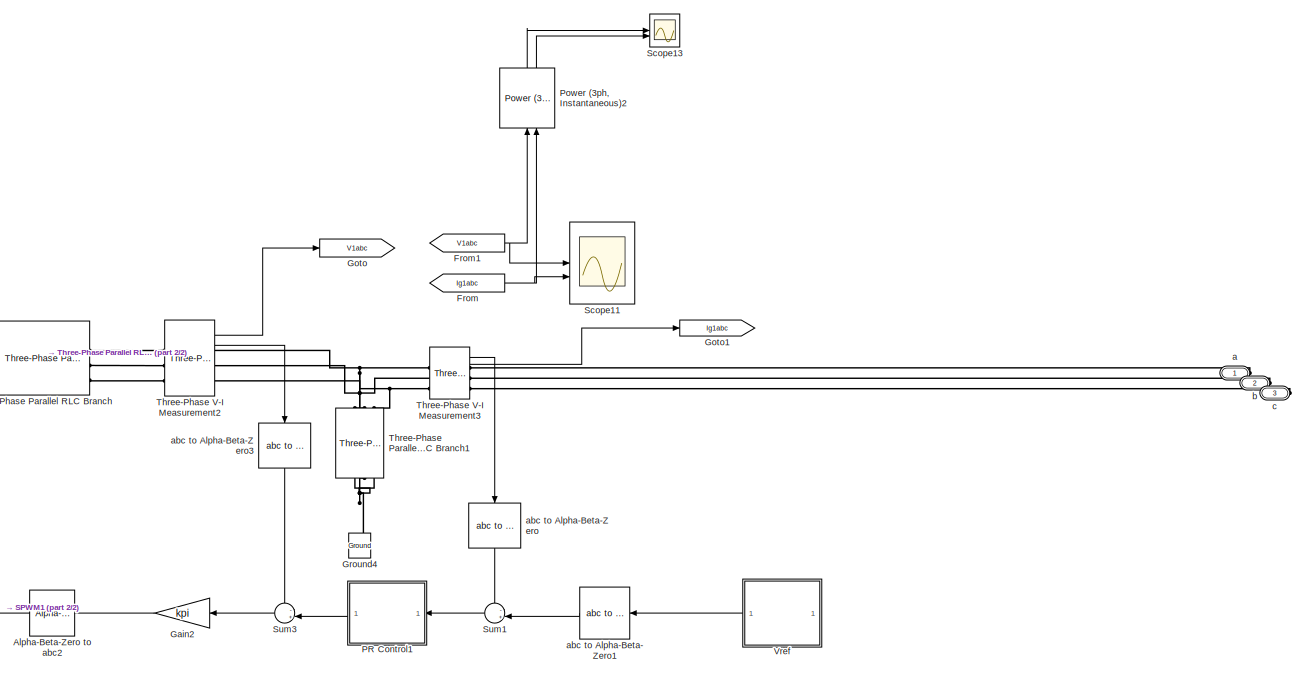
[diagram: Voltage Controlled VSC - part 1/2, most of the canvas]
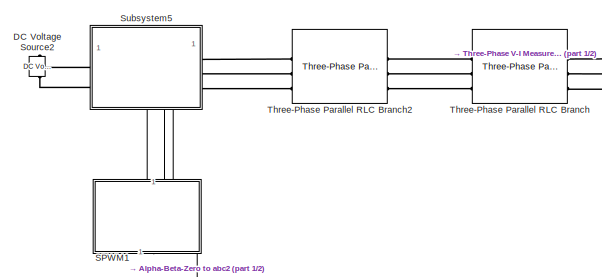
[diagram: Voltage Controlled VSC - part 2/2, middle left region]
BLOCK [SubSystem] Voltage Controlled VSC
  NameLocation = top
BLOCK [Reference] Voltage Controlled VSC/Alpha-Beta-Zero to abc2  REF=spsAlphaBetaZerotoabcLib/Alpha-Beta-Zero
to abc
  LibrarySourceBlock = sps_lib/Control/Alpha-Beta-Zero\nto abc
  NameLocation = top
  SourceBlock = spsAlphaBetaZerotoabcLib/Alpha-Beta-Zero\nto abc
  SourceType = Alpha-Beta-Zero to abc Transformation
BLOCK [Reference] Voltage Controlled VSC/DC Voltage Source2  REF=spsDCVoltageSourceLib/DC Voltage Source
  LibrarySourceBlock = sps_lib/Sources/DC Voltage Source
  SourceBlock = spsDCVoltageSourceLib/DC Voltage Source
  SourceType = DC Voltage Source
BLOCK [From] Voltage Controlled VSC/From
  GotoTag = Ig1abc
BLOCK [From] Voltage Controlled VSC/From1
  GotoTag = V1abc
BLOCK [Gain] Voltage Controlled VSC/Gain2
  Gain = kpi
  NameLocation = top
BLOCK [Goto] Voltage Controlled VSC/Goto
  GotoTag = V1abc
BLOCK [Goto] Voltage Controlled VSC/Goto1
  GotoTag = Ig1abc
BLOCK [Reference] Voltage Controlled VSC/Ground4  REF=spsGroundLib/Ground
  LibrarySourceBlock = sps_lib/Utilities/Ground
  NameLocation = right
  SourceBlock = spsGroundLib/Ground
  SourceType = Ground
BLOCK [SubSystem] Voltage Controlled VSC/PR Control1
  NameLocation = top
BLOCK [Constant] Voltage Controlled VSC/PR Control1/Constant2
  NameLocation = top
  Value = 0
BLOCK [Demux] Voltage Controlled VSC/PR Control1/Demux3
  NameLocation = top
  Outputs = 3
BLOCK [Inport] Voltage Controlled VSC/PR Control1/In1
BLOCK [Mux] Voltage Controlled VSC/PR Control1/Mux4
  DisplayOption = bar
  Inputs = 3
  NameLocation = top
BLOCK [Outport] Voltage Controlled VSC/PR Control1/Out1
BLOCK [Terminator] Voltage Controlled VSC/PR Control1/Terminator
  NameLocation = top
BLOCK [TransferFcn] Voltage Controlled VSC/PR Control1/Transfer Fcn
  Denominator = [1 0 omega^2]
  NameLocation = top
  Numerator = [kpv krv kpv*(omega^2)]
BLOCK [TransferFcn] Voltage Controlled VSC/PR Control1/Transfer Fcn1
  Denominator = [1 0 omega^2]
  NameLocation = top
  Numerator = [kpv krv kpv*(omega^2)]
BLOCK [Reference] Voltage Controlled VSC/Power (3ph, Instantaneous)2  REF=spsPower3phInstantaneousLib/Power
(3ph, Instantaneous)
  LibrarySourceBlock = sps_lib/Sensors and Measurements/Power\n(3ph, Instantaneous)
  NameLocation = right
  SourceBlock = spsPower3phInstantaneousLib/Power\n(3ph, Instantaneous)
  SourceType = Power (3ph, Instantaneous)
BLOCK [SubSystem] Voltage Controlled VSC/SPWM1
  NameLocation = right
BLOCK [Constant] Voltage Controlled VSC/SPWM1/Constant3
  Value = vdc
BLOCK [Demux] Voltage Controlled VSC/SPWM1/Demux
  Outputs = 6
BLOCK [Mux] Voltage Controlled VSC/SPWM1/Mux1
  DisplayOption = bar
  Inputs = 2
BLOCK [Mux] Voltage Controlled VSC/SPWM1/Mux2
  DisplayOption = bar
  Inputs = 2
BLOCK [Mux] Voltage Controlled VSC/SPWM1/Mux3
  DisplayOption = bar
  Inputs = 2
BLOCK [Outport] Voltage Controlled VSC/SPWM1/Out1
  NameLocation = top
BLOCK [Outport] Voltage Controlled VSC/SPWM1/Out2
  NameLocation = top
  Port = 2
BLOCK [Outport] Voltage Controlled VSC/SPWM1/Out3
  NameLocation = top
  Port = 3
BLOCK [Reference] Voltage Controlled VSC/SPWM1/PWM Generator (Three-phase, Two-level)  REF=eePwmGeneratorTwoLevel/PWM Generator
(Three-phase, Two-level)
  LibrarySourceBlock = ee_sl_lib/Pulse Width\nModulation/PWM Generator\n(Three-phase, Two-level)
  SourceBlock = eePwmGeneratorTwoLevel/PWM Generator\n(Three-phase, Two-level)
  SourceType = PWM Generator (three-phase, two-level)
BLOCK [Scope] Voltage Controlled VSC/SPWM1/Scope
  Floating = off
  NumInputPorts = 1
  ScopeSpecificationString = Simulink.scopes.TimeScopeBlockCfg
BLOCK [Scope] Voltage Controlled VSC/SPWM1/Scope1
  Floating = off
  NumInputPorts = 1
  ScopeSpecificationString = Simulink.scopes.TimeScopeBlockCfg('CurrentConfiguration', extmgr.ConfigurationSet(extmgr.Configuration('Core','General UI',true),extmgr.Configuration('Core','Source UI',true),extmgr.Configuration('Sources','WiredSimulink',true,'DataLoggingVariableName','ScopeData1'),extmgr.Configuration('Visuals','Time Domain',true,'SerializedDisplays',{struct('MinYLimReal','-2.82135','MaxYLimReal','1.55773','YLab...<+1541ch>
BLOCK [Inport] Voltage Controlled VSC/SPWM1/Vabc
  NameLocation = top
BLOCK [Scope] Voltage Controlled VSC/Scope11
  Floating = off
  NumInputPorts = 2
  ScopeSpecificationString = Simulink.scopes.TimeScopeBlockCfg('CurrentConfiguration', extmgr.ConfigurationSet(extmgr.Configuration('Core','General UI',true,'FigureColor',[1 1 1]),extmgr.Configuration('Core','Source UI',true),extmgr.Configuration('Sources','WiredSimulink',true,'DataLoggingVariableName','ScopeData1'),extmgr.Configuration('Visuals','Time Domain',true,'SerializedDisplays',{struct('MinYLimReal','-425.31369','MaxY...<+2670ch>
BLOCK [Scope] Voltage Controlled VSC/Scope13
  Floating = off
  NumInputPorts = 2
  ScopeSpecificationString = Simulink.scopes.TimeScopeBlockCfg('CurrentConfiguration', extmgr.ConfigurationSet(extmgr.Configuration('Core','General UI',true),extmgr.Configuration('Core','Source UI',true),extmgr.Configuration('Sources','WiredSimulink',true,'DataLoggingVariableName','ScopeData4'),extmgr.Configuration('Visuals','Time Domain',true,'SerializedDisplays',{struct('MinYLimReal','-7018.83882','MaxYLimReal','29227.52301...<+1523ch>
BLOCK [SubSystem] Voltage Controlled VSC/Subsystem5
BLOCK [Inport] Voltage Controlled VSC/Subsystem5/  2
  Port = 2
BLOCK [Inport] Voltage Controlled VSC/Subsystem5/  3
  Port = 3
BLOCK [Inport] Voltage Controlled VSC/Subsystem5/ 1 
BLOCK [PMIOPort] Voltage Controlled VSC/Subsystem5/+
  Side = Left
BLOCK [PMIOPort] Voltage Controlled VSC/Subsystem5/-
  Port = 2
  Side = Left
BLOCK [PMIOPort] Voltage Controlled VSC/Subsystem5/1
  Port = 3
  Side = Right
BLOCK [PMIOPort] Voltage Controlled VSC/Subsystem5/2
  Port = 4
  Side = Right
BLOCK [PMIOPort] Voltage Controlled VSC/Subsystem5/3
  Port = 5
  Side = Right
BLOCK [Reference] Voltage Controlled VSC/Subsystem5/Half-Bridge Converter  REF=spsHalfBridgeConverterLib/Half-Bridge Converter
  LibrarySourceBlock = sps_lib/Power Electronics/Half-Bridge Converter
  SourceBlock = spsHalfBridgeConverterLib/Half-Bridge Converter
  SourceType = Half-Bridge Converter
BLOCK [Reference] Voltage Controlled VSC/Subsystem5/Half-Bridge Converter1  REF=spsHalfBridgeConverterLib/Half-Bridge Converter
  LibrarySourceBlock = sps_lib/Power Electronics/Half-Bridge Converter
  SourceBlock = spsHalfBridgeConverterLib/Half-Bridge Converter
  SourceType = Half-Bridge Converter
BLOCK [Reference] Voltage Controlled VSC/Subsystem5/Half-Bridge Converter2  REF=spsHalfBridgeConverterLib/Half-Bridge Converter
  LibrarySourceBlock = sps_lib/Power Electronics/Half-Bridge Converter
  SourceBlock = spsHalfBridgeConverterLib/Half-Bridge Converter
  SourceType = Half-Bridge Converter
BLOCK [Sum] Voltage Controlled VSC/Sum1
  Inputs = -+|
  NameLocation = top
BLOCK [Sum] Voltage Controlled VSC/Sum3
  Inputs = -+|
  NameLocation = top
BLOCK [Reference] Voltage Controlled VSC/Three-Phase Parallel RLC Branch  REF=spsThreePhaseParallelRLCBranchLib/Three-Phase
Parallel RLC Branch
  AttributesFormatString = \n
  LibrarySourceBlock = sps_lib/Passives/Three-Phase\nParallel RLC Branch
  SourceBlock = spsThreePhaseParallelRLCBranchLib/Three-Phase\nParallel RLC Branch
  SourceType = Three-Phase Parallel RLC Branch
BLOCK [Reference] Voltage Controlled VSC/Three-Phase Parallel RLC Branch1  REF=spsThreePhaseParallelRLCBranchLib/Three-Phase
Parallel RLC Branch
  AttributesFormatString = \n
  LibrarySourceBlock = sps_lib/Passives/Three-Phase\nParallel RLC Branch
  NameLocation = left
  SourceBlock = spsThreePhaseParallelRLCBranchLib/Three-Phase\nParallel RLC Branch
  SourceType = Three-Phase Parallel RLC Branch
BLOCK [Reference] Voltage Controlled VSC/Three-Phase Parallel RLC Branch2  REF=spsThreePhaseParallelRLCBranchLib/Three-Phase
Parallel RLC Branch
  AttributesFormatString = \n
  LibrarySourceBlock = sps_lib/Passives/Three-Phase\nParallel RLC Branch
  SourceBlock = spsThreePhaseParallelRLCBranchLib/Three-Phase\nParallel RLC Branch
  SourceType = Three-Phase Parallel RLC Branch
BLOCK [Reference] Voltage Controlled VSC/Three-Phase V-I Measurement2  REF=spsThreePhaseVIMeasurementLib/Three-Phase
V-I Measurement
  LibrarySourceBlock = sps_lib/Sensors and Measurements/Three-Phase\nV-I Measurement
  SourceBlock = spsThreePhaseVIMeasurementLib/Three-Phase\nV-I Measurement
  SourceType = Three-Phase VI Measurement
BLOCK [Reference] Voltage Controlled VSC/Three-Phase V-I Measurement3  REF=spsThreePhaseVIMeasurementLib/Three-Phase
V-I Measurement
  LibrarySourceBlock = sps_lib/Sensors and Measurements/Three-Phase\nV-I Measurement
  SourceBlock = spsThreePhaseVIMeasurementLib/Three-Phase\nV-I Measurement
  SourceType = Three-Phase VI Measurement
BLOCK [SubSystem] Voltage Controlled VSC/Vref
  NameLocation = top
BLOCK [Reference] Voltage Controlled VSC/Vref/Ground4  REF=spsGroundLib/Ground
  LibrarySourceBlock = sps_lib/Utilities/Ground
  NameLocation = right
  SourceBlock = spsGroundLib/Ground
  SourceType = Ground
BLOCK [Reference] Voltage Controlled VSC/Vref/Three-Phase Programmable Voltage Source1  REF=spsThreePhaseProgrammableVoltageSourceLib/Three-Phase
Programmable
Voltage Source
  LibrarySourceBlock = sps_lib/Sources/Three-Phase\nProgrammable\nVoltage Source
  NameLocation = top
  SourceBlock = spsThreePhaseProgrammableVoltageSourceLib/Three-Phase\nProgrammable\nVoltage Source
  SourceType = Three-Phase Programmable Voltage Source
BLOCK [Reference] Voltage Controlled VSC/Vref/Three-Phase V-I Measurement4  REF=spsThreePhaseVIMeasurementLib/Three-Phase
V-I Measurement
  LibrarySourceBlock = sps_lib/Sensors and Measurements/Three-Phase\nV-I Measurement
  NameLocation = top
  SourceBlock = spsThreePhaseVIMeasurementLib/Three-Phase\nV-I Measurement
  SourceType = Three-Phase VI Measurement
BLOCK [Outport] Voltage Controlled VSC/Vref/Vabc
BLOCK [PMIOPort] Voltage Controlled VSC/a
  Side = Right
BLOCK [Reference] Voltage Controlled VSC/abc to Alpha-Beta-Zero  REF=spsabctoAlphaBetaZeroLib/abc to
Alpha-Beta-Zero
  LibrarySourceBlock = sps_lib/Control/abc to\nAlpha-Beta-Zero
  NameLocation = left
  SourceBlock = spsabctoAlphaBetaZeroLib/abc to\nAlpha-Beta-Zero
  SourceType = abc to Alpha-Beta-Zero Transformation
BLOCK [Reference] Voltage Controlled VSC/abc to Alpha-Beta-Zero1  REF=spsabctoAlphaBetaZeroLib/abc to
Alpha-Beta-Zero
  LibrarySourceBlock = sps_lib/Control/abc to\nAlpha-Beta-Zero
  NameLocation = top
  SourceBlock = spsabctoAlphaBetaZeroLib/abc to\nAlpha-Beta-Zero
  SourceType = abc to Alpha-Beta-Zero Transformation
BLOCK [Reference] Voltage Controlled VSC/abc to Alpha-Beta-Zero3  REF=spsabctoAlphaBetaZeroLib/abc to
Alpha-Beta-Zero
  LibrarySourceBlock = sps_lib/Control/abc to\nAlpha-Beta-Zero
  NameLocation = left
  SourceBlock = spsabctoAlphaBetaZeroLib/abc to\nAlpha-Beta-Zero
  SourceType = abc to Alpha-Beta-Zero Transformation
BLOCK [PMIOPort] Voltage Controlled VSC/b
  Port = 2
  Side = Right
BLOCK [PMIOPort] Voltage Controlled VSC/c
  Port = 3
  Side = Right
BLOCK [Reference] powergui  REF=spspowerguiLib/powergui
  LibrarySourceBlock = sps_lib/powergui
  Priority = 1
  SourceBlock = spspowerguiLib/powergui
  SourceType = PSB option menu block
LINE Current Controlled VSC1/Alpha-Beta-Zero to abc3:1 -> Current Controlled VSC1/SPWM2:1
NET Current Controlled VSC1/Constant4:1 -> Current Controlled VSC1/Mux1:2, Current Controlled VSC1/Mux1:3
LINE Current Controlled VSC1/In1:1 -> Current Controlled VSC1/Subsystem:1
LINE Current Controlled VSC1/Mux1:1 -> Current Controlled VSC1/dq0 to Alpha Beta1:1
LINE Current Controlled VSC1/PLL (3ph)1:2 -> Current Controlled VSC1/dq0 to Alpha Beta1:2
LINE Current Controlled VSC1/PR Control2/Constant2:1 -> Current Controlled VSC1/PR Control2/Mux4:3
LINE Current Controlled VSC1/PR Control2/Demux3:1 -> Current Controlled VSC1/PR Control2/Subsystem:1
LINE Current Controlled VSC1/PR Control2/Demux3:2 -> Current Controlled VSC1/PR Control2/Subsystem1:1
LINE Current Controlled VSC1/PR Control2/Demux3:3 -> Current Controlled VSC1/PR Control2/Terminator:1
LINE Current Controlled VSC1/PR Control2/In1:1 -> Current Controlled VSC1/PR Control2/Demux3:1
LINE Current Controlled VSC1/PR Control2/Mux4:1 -> Current Controlled VSC1/PR Control2/Out1:1
LINE Current Controlled VSC1/PR Control2/Subsystem/Gain:1 -> Current Controlled VSC1/PR Control2/Subsystem/Sum:2
NET Current Controlled VSC1/PR Control2/Subsystem/In1:1 -> Current Controlled VSC1/PR Control2/Subsystem/Gain:1, Current Controlled VSC1/PR Control2/Subsystem/Transfer Fcn:1
LINE Current Controlled VSC1/PR Control2/Subsystem/Sum:1 -> Current Controlled VSC1/PR Control2/Subsystem/Out1:1
LINE Current Controlled VSC1/PR Control2/Subsystem/Transfer Fcn:1 -> Current Controlled VSC1/PR Control2/Subsystem/Sum:1
LINE Current Controlled VSC1/PR Control2/Subsystem1/Gain:1 -> Current Controlled VSC1/PR Control2/Subsystem1/Sum:2
NET Current Controlled VSC1/PR Control2/Subsystem1/In1:1 -> Current Controlled VSC1/PR Control2/Subsystem1/Gain:1, Current Controlled VSC1/PR Control2/Subsystem1/Transfer Fcn:1
LINE Current Controlled VSC1/PR Control2/Subsystem1/Sum:1 -> Current Controlled VSC1/PR Control2/Subsystem1/Out1:1
LINE Current Controlled VSC1/PR Control2/Subsystem1/Transfer Fcn:1 -> Current Controlled VSC1/PR Control2/Subsystem1/Sum:1
LINE Current Controlled VSC1/PR Control2/Subsystem1:1 -> Current Controlled VSC1/PR Control2/Mux4:2
LINE Current Controlled VSC1/PR Control2/Subsystem:1 -> Current Controlled VSC1/PR Control2/Mux4:1
LINE Current Controlled VSC1/PR Control2:1 -> Current Controlled VSC1/Alpha-Beta-Zero to abc3:1
LINE Current Controlled VSC1/SPWM2/Constant3:1 -> Current Controlled VSC1/SPWM2/PWM Generator (Three-phase, Two-level):2
LINE Current Controlled VSC1/SPWM2/Demux:1 -> Current Controlled VSC1/SPWM2/Mux1:1
LINE Current Controlled VSC1/SPWM2/Demux:2 -> Current Controlled VSC1/SPWM2/Mux1:2
LINE Current Controlled VSC1/SPWM2/Demux:3 -> Current Controlled VSC1/SPWM2/Mux2:1
LINE Current Controlled VSC1/SPWM2/Demux:4 -> Current Controlled VSC1/SPWM2/Mux2:2
LINE Current Controlled VSC1/SPWM2/Demux:5 -> Current Controlled VSC1/SPWM2/Mux3:1
LINE Current Controlled VSC1/SPWM2/Demux:6 -> Current Controlled VSC1/SPWM2/Mux3:2
LINE Current Controlled VSC1/SPWM2/Mux1:1 -> Current Controlled VSC1/SPWM2/Out1:1
LINE Current Controlled VSC1/SPWM2/Mux2:1 -> Current Controlled VSC1/SPWM2/Out2:1
LINE Current Controlled VSC1/SPWM2/Mux3:1 -> Current Controlled VSC1/SPWM2/Out3:1
LINE Current Controlled VSC1/SPWM2/PWM Generator (Three-phase, Two-level):1 -> Current Controlled VSC1/SPWM2/Demux:1
LINE Current Controlled VSC1/SPWM2/PWM Generator (Three-phase, Two-level):2 -> Current Controlled VSC1/SPWM2/Scope1:1
LINE Current Controlled VSC1/SPWM2/Vabc:1 -> Current Controlled VSC1/SPWM2/PWM Generator (Three-phase, Two-level):1
LINE Current Controlled VSC1/SPWM2:1 -> Current Controlled VSC1/Subsystem6:1
LINE Current Controlled VSC1/SPWM2:2 -> Current Controlled VSC1/Subsystem6:2
LINE Current Controlled VSC1/SPWM2:3 -> Current Controlled VSC1/Subsystem6:3
LINE Current Controlled VSC1/Subsystem/Constant5:1 -> Current Controlled VSC1/Subsystem/Gain2:1
LINE Current Controlled VSC1/Subsystem/Divide1:1 -> Current Controlled VSC1/Subsystem/Out1:1
LINE Current Controlled VSC1/Subsystem/Gain2:1 -> Current Controlled VSC1/Subsystem/Divide1:2
LINE Current Controlled VSC1/Subsystem/Gain3:1 -> Current Controlled VSC1/Subsystem/Divide1:1
LINE Current Controlled VSC1/Subsystem/In1:1 -> Current Controlled VSC1/Subsystem/Gain3:1
LINE Current Controlled VSC1/Subsystem6/  2:1 -> Current Controlled VSC1/Subsystem6/Half-Bridge Converter1:1
LINE Current Controlled VSC1/Subsystem6/  3:1 -> Current Controlled VSC1/Subsystem6/Half-Bridge Converter2:1
LINE Current Controlled VSC1/Subsystem6/ 1 :1 -> Current Controlled VSC1/Subsystem6/Half-Bridge Converter:1
LINE Current Controlled VSC1/Subsystem7/Three-Phase V-I Measurement2:2 -> Current Controlled VSC1/Subsystem7/Iabc:1
LINE Current Controlled VSC1/Subsystem7:1 -> Current Controlled VSC1/abc to Alpha-Beta-Zero4:1
LINE Current Controlled VSC1/Subsystem8/Three-Phase V-I Measurement3:1 -> Current Controlled VSC1/Subsystem8/Vabc:1
LINE Current Controlled VSC1/Subsystem8:1 -> Current Controlled VSC1/PLL (3ph)1:1
LINE Current Controlled VSC1/Subsystem9/Three-Phase V-I Measurement:1 -> Current Controlled VSC1/Subsystem9/Vabc:1
LINE Current Controlled VSC1/Subsystem9/Three-Phase V-I Measurement:2 -> Current Controlled VSC1/Subsystem9/Iabc:1
LINE Current Controlled VSC1/Subsystem:1 -> Current Controlled VSC1/Mux1:1
LINE Current Controlled VSC1/Sum4:1 -> Current Controlled VSC1/PR Control2:1
LINE Current Controlled VSC1/abc to Alpha-Beta-Zero4:1 -> Current Controlled VSC1/Sum4:1
LINE Current Controlled VSC1/dq0 to Alpha Beta1/dq0 to Alpha-Beta-Zero:1 -> Current Controlled VSC1/dq0 to Alpha Beta1/al_be_0:1
LINE Current Controlled VSC1/dq0 to Alpha Beta1/dq0:1 -> Current Controlled VSC1/dq0 to Alpha Beta1/dq0 to Alpha-Beta-Zero:1
LINE Current Controlled VSC1/dq0 to Alpha Beta1/wt:1 -> Current Controlled VSC1/dq0 to Alpha Beta1/dq0 to Alpha-Beta-Zero:2
LINE Current Controlled VSC1/dq0 to Alpha Beta1:1 -> Current Controlled VSC1/Sum4:2
LINE Current Controlled VSC2/Alpha-Beta-Zero to abc3:1 -> Current Controlled VSC2/SPWM2:1
NET Current Controlled VSC2/Constant4:1 -> Current Controlled VSC2/Mux1:2, Current Controlled VSC2/Mux1:3
LINE Current Controlled VSC2/In1:1 -> Current Controlled VSC2/Subsystem:1
LINE Current Controlled VSC2/Mux1:1 -> Current Controlled VSC2/dq0 to Alpha Beta1:1
LINE Current Controlled VSC2/PLL (3ph)1:2 -> Current Controlled VSC2/dq0 to Alpha Beta1:2
LINE Current Controlled VSC2/PR Control2/Constant2:1 -> Current Controlled VSC2/PR Control2/Mux4:3
LINE Current Controlled VSC2/PR Control2/Demux3:1 -> Current Controlled VSC2/PR Control2/Subsystem:1
LINE Current Controlled VSC2/PR Control2/Demux3:2 -> Current Controlled VSC2/PR Control2/Subsystem1:1
LINE Current Controlled VSC2/PR Control2/Demux3:3 -> Current Controlled VSC2/PR Control2/Terminator:1
LINE Current Controlled VSC2/PR Control2/In1:1 -> Current Controlled VSC2/PR Control2/Demux3:1
LINE Current Controlled VSC2/PR Control2/Mux4:1 -> Current Controlled VSC2/PR Control2/Out1:1
LINE Current Controlled VSC2/PR Control2/Subsystem/Gain:1 -> Current Controlled VSC2/PR Control2/Subsystem/Sum:2
NET Current Controlled VSC2/PR Control2/Subsystem/In1:1 -> Current Controlled VSC2/PR Control2/Subsystem/Gain:1, Current Controlled VSC2/PR Control2/Subsystem/Transfer Fcn:1
LINE Current Controlled VSC2/PR Control2/Subsystem/Sum:1 -> Current Controlled VSC2/PR Control2/Subsystem/Out1:1
LINE Current Controlled VSC2/PR Control2/Subsystem/Transfer Fcn:1 -> Current Controlled VSC2/PR Control2/Subsystem/Sum:1
LINE Current Controlled VSC2/PR Control2/Subsystem1/Gain:1 -> Current Controlled VSC2/PR Control2/Subsystem1/Sum:2
NET Current Controlled VSC2/PR Control2/Subsystem1/In1:1 -> Current Controlled VSC2/PR Control2/Subsystem1/Gain:1, Current Controlled VSC2/PR Control2/Subsystem1/Transfer Fcn:1
LINE Current Controlled VSC2/PR Control2/Subsystem1/Sum:1 -> Current Controlled VSC2/PR Control2/Subsystem1/Out1:1
LINE Current Controlled VSC2/PR Control2/Subsystem1/Transfer Fcn:1 -> Current Controlled VSC2/PR Control2/Subsystem1/Sum:1
LINE Current Controlled VSC2/PR Control2/Subsystem1:1 -> Current Controlled VSC2/PR Control2/Mux4:2
LINE Current Controlled VSC2/PR Control2/Subsystem:1 -> Current Controlled VSC2/PR Control2/Mux4:1
LINE Current Controlled VSC2/PR Control2:1 -> Current Controlled VSC2/Alpha-Beta-Zero to abc3:1
LINE Current Controlled VSC2/SPWM2/Constant3:1 -> Current Controlled VSC2/SPWM2/PWM Generator (Three-phase, Two-level):2
LINE Current Controlled VSC2/SPWM2/Demux:1 -> Current Controlled VSC2/SPWM2/Mux1:1
LINE Current Controlled VSC2/SPWM2/Demux:2 -> Current Controlled VSC2/SPWM2/Mux1:2
LINE Current Controlled VSC2/SPWM2/Demux:3 -> Current Controlled VSC2/SPWM2/Mux2:1
LINE Current Controlled VSC2/SPWM2/Demux:4 -> Current Controlled VSC2/SPWM2/Mux2:2
LINE Current Controlled VSC2/SPWM2/Demux:5 -> Current Controlled VSC2/SPWM2/Mux3:1
LINE Current Controlled VSC2/SPWM2/Demux:6 -> Current Controlled VSC2/SPWM2/Mux3:2
LINE Current Controlled VSC2/SPWM2/Mux1:1 -> Current Controlled VSC2/SPWM2/Out1:1
LINE Current Controlled VSC2/SPWM2/Mux2:1 -> Current Controlled VSC2/SPWM2/Out2:1
LINE Current Controlled VSC2/SPWM2/Mux3:1 -> Current Controlled VSC2/SPWM2/Out3:1
LINE Current Controlled VSC2/SPWM2/PWM Generator (Three-phase, Two-level):1 -> Current Controlled VSC2/SPWM2/Demux:1
LINE Current Controlled VSC2/SPWM2/PWM Generator (Three-phase, Two-level):2 -> Current Controlled VSC2/SPWM2/Scope1:1
LINE Current Controlled VSC2/SPWM2/Vabc:1 -> Current Controlled VSC2/SPWM2/PWM Generator (Three-phase, Two-level):1
LINE Current Controlled VSC2/SPWM2:1 -> Current Controlled VSC2/Subsystem6:1
LINE Current Controlled VSC2/SPWM2:2 -> Current Controlled VSC2/Subsystem6:2
LINE Current Controlled VSC2/SPWM2:3 -> Current Controlled VSC2/Subsystem6:3
LINE Current Controlled VSC2/Subsystem/Constant5:1 -> Current Controlled VSC2/Subsystem/Gain2:1
LINE Current Controlled VSC2/Subsystem/Divide1:1 -> Current Controlled VSC2/Subsystem/Out1:1
LINE Current Controlled VSC2/Subsystem/Gain2:1 -> Current Controlled VSC2/Subsystem/Divide1:2
LINE Current Controlled VSC2/Subsystem/Gain3:1 -> Current Controlled VSC2/Subsystem/Divide1:1
LINE Current Controlled VSC2/Subsystem/In1:1 -> Current Controlled VSC2/Subsystem/Gain3:1
LINE Current Controlled VSC2/Subsystem6/  2:1 -> Current Controlled VSC2/Subsystem6/Half-Bridge Converter1:1
LINE Current Controlled VSC2/Subsystem6/  3:1 -> Current Controlled VSC2/Subsystem6/Half-Bridge Converter2:1
LINE Current Controlled VSC2/Subsystem6/ 1 :1 -> Current Controlled VSC2/Subsystem6/Half-Bridge Converter:1
LINE Current Controlled VSC2/Subsystem7/Three-Phase V-I Measurement2:2 -> Current Controlled VSC2/Subsystem7/Iabc:1
LINE Current Controlled VSC2/Subsystem7:1 -> Current Controlled VSC2/abc to Alpha-Beta-Zero4:1
LINE Current Controlled VSC2/Subsystem8/Three-Phase V-I Measurement3:1 -> Current Controlled VSC2/Subsystem8/Vabc:1
LINE Current Controlled VSC2/Subsystem8:1 -> Current Controlled VSC2/PLL (3ph)1:1
LINE Current Controlled VSC2/Subsystem9/Three-Phase V-I Measurement:1 -> Current Controlled VSC2/Subsystem9/Vabc:1
LINE Current Controlled VSC2/Subsystem9/Three-Phase V-I Measurement:2 -> Current Controlled VSC2/Subsystem9/Iabc:1
LINE Current Controlled VSC2/Subsystem:1 -> Current Controlled VSC2/Mux1:1
LINE Current Controlled VSC2/Sum4:1 -> Current Controlled VSC2/PR Control2:1
LINE Current Controlled VSC2/abc to Alpha-Beta-Zero4:1 -> Current Controlled VSC2/Sum4:1
LINE Current Controlled VSC2/dq0 to Alpha Beta1/dq0 to Alpha-Beta-Zero:1 -> Current Controlled VSC2/dq0 to Alpha Beta1/al_be_0:1
LINE Current Controlled VSC2/dq0 to Alpha Beta1/dq0:1 -> Current Controlled VSC2/dq0 to Alpha Beta1/dq0 to Alpha-Beta-Zero:1
LINE Current Controlled VSC2/dq0 to Alpha Beta1/wt:1 -> Current Controlled VSC2/dq0 to Alpha Beta1/dq0 to Alpha-Beta-Zero:2
LINE Current Controlled VSC2/dq0 to Alpha Beta1:1 -> Current Controlled VSC2/Sum4:2
LINE Real Power:1 -> Current Controlled VSC1:1
LINE Real_Power:1 -> Current Controlled VSC2:1
LINE Subsystem/Power (3ph, Instantaneous)5:1 -> Subsystem/P:1
LINE Subsystem/Power (3ph, Instantaneous)5:2 -> Subsystem/Q:1
LINE Subsystem/Subsystem10/Three-Phase V-I Measurement:1 -> Subsystem/Subsystem10/Vabc:1
LINE Subsystem/Subsystem10/Three-Phase V-I Measurement:2 -> Subsystem/Subsystem10/Iabc:1
LINE Subsystem/Subsystem10:1 -> Subsystem/Power (3ph, Instantaneous)5:1
LINE Subsystem/Subsystem10:2 -> Subsystem/Power (3ph, Instantaneous)5:2
LINE Subsystem2/Power (3ph, Instantaneous)5:1 -> Subsystem2/P:1
LINE Subsystem2/Power (3ph, Instantaneous)5:2 -> Subsystem2/Q:1
LINE Subsystem2/Subsystem10/Three-Phase V-I Measurement:1 -> Subsystem2/Subsystem10/Vabc:1
LINE Subsystem2/Subsystem10/Three-Phase V-I Measurement:2 -> Subsystem2/Subsystem10/Iabc:1
LINE Subsystem2/Subsystem10:1 -> Subsystem2/Power (3ph, Instantaneous)5:1
LINE Subsystem2/Subsystem10:2 -> Subsystem2/Power (3ph, Instantaneous)5:2
LINE Subsystem2:1 -> Scope2:1
LINE Subsystem2:2 -> Scope2:2
LINE Subsystem3/Power (3ph, Instantaneous)5:1 -> Subsystem3/P:1
LINE Subsystem3/Power (3ph, Instantaneous)5:2 -> Subsystem3/Q:1
LINE Subsystem3/Subsystem10/Three-Phase V-I Measurement:1 -> Subsystem3/Subsystem10/Vabc:1
LINE Subsystem3/Subsystem10/Three-Phase V-I Measurement:2 -> Subsystem3/Subsystem10/Iabc:1
LINE Subsystem3/Subsystem10:1 -> Subsystem3/Power (3ph, Instantaneous)5:1
LINE Subsystem3/Subsystem10:2 -> Subsystem3/Power (3ph, Instantaneous)5:2
LINE Subsystem3:1 -> Scope3:2
LINE Subsystem3:2 -> Scope3:1
LINE Subsystem4/Power (3ph, Instantaneous)5:1 -> Subsystem4/P:1
LINE Subsystem4/Power (3ph, Instantaneous)5:2 -> Subsystem4/Q:1
LINE Subsystem4/Subsystem10/Three-Phase V-I Measurement:1 -> Subsystem4/Subsystem10/Vabc:1
LINE Subsystem4/Subsystem10/Three-Phase V-I Measurement:2 -> Subsystem4/Subsystem10/Iabc:1
LINE Subsystem4/Subsystem10:1 -> Subsystem4/Power (3ph, Instantaneous)5:1
LINE Subsystem4/Subsystem10:2 -> Subsystem4/Power (3ph, Instantaneous)5:2
LINE Subsystem4:1 -> Scope4:1
LINE Subsystem4:2 -> Scope4:2
LINE Subsystem5/Power (3ph, Instantaneous)5:1 -> Subsystem5/P:1
LINE Subsystem5/Power (3ph, Instantaneous)5:2 -> Subsystem5/Q:1
LINE Subsystem5/Subsystem10/Three-Phase V-I Measurement:1 -> Subsystem5/Subsystem10/Vabc:1
LINE Subsystem5/Subsystem10/Three-Phase V-I Measurement:2 -> Subsystem5/Subsystem10/Iabc:1
LINE Subsystem5/Subsystem10:1 -> Subsystem5/Power (3ph, Instantaneous)5:1
LINE Subsystem5/Subsystem10:2 -> Subsystem5/Power (3ph, Instantaneous)5:2
LINE Subsystem5:1 -> Scope5:2
LINE Subsystem5:2 -> Scope5:1
LINE Subsystem:1 -> Scope1:2
LINE Subsystem:2 -> Scope1:1
LINE Voltage Controlled VSC/Alpha-Beta-Zero to abc2:1 -> Voltage Controlled VSC/SPWM1:1
NET Voltage Controlled VSC/From1:1 -> Voltage Controlled VSC/Power (3ph, Instantaneous)2:1, Voltage Controlled VSC/Scope11:1
NET Voltage Controlled VSC/From:1 -> Voltage Controlled VSC/Power (3ph, Instantaneous)2:2, Voltage Controlled VSC/Scope11:2
LINE Voltage Controlled VSC/Gain2:1 -> Voltage Controlled VSC/Alpha-Beta-Zero to abc2:1
LINE Voltage Controlled VSC/PR Control1/Constant2:1 -> Voltage Controlled VSC/PR Control1/Mux4:3
LINE Voltage Controlled VSC/PR Control1/Demux3:1 -> Voltage Controlled VSC/PR Control1/Transfer Fcn:1
LINE Voltage Controlled VSC/PR Control1/Demux3:2 -> Voltage Controlled VSC/PR Control1/Transfer Fcn1:1
LINE Voltage Controlled VSC/PR Control1/Demux3:3 -> Voltage Controlled VSC/PR Control1/Terminator:1
LINE Voltage Controlled VSC/PR Control1/In1:1 -> Voltage Controlled VSC/PR Control1/Demux3:1
LINE Voltage Controlled VSC/PR Control1/Mux4:1 -> Voltage Controlled VSC/PR Control1/Out1:1
LINE Voltage Controlled VSC/PR Control1/Transfer Fcn1:1 -> Voltage Controlled VSC/PR Control1/Mux4:2
LINE Voltage Controlled VSC/PR Control1/Transfer Fcn:1 -> Voltage Controlled VSC/PR Control1/Mux4:1
LINE Voltage Controlled VSC/PR Control1:1 -> Voltage Controlled VSC/Sum3:2
LINE Voltage Controlled VSC/Power (3ph, Instantaneous)2:1 -> Voltage Controlled VSC/Scope13:1
LINE Voltage Controlled VSC/Power (3ph, Instantaneous)2:2 -> Voltage Controlled VSC/Scope13:2
LINE Voltage Controlled VSC/SPWM1/Constant3:1 -> Voltage Controlled VSC/SPWM1/PWM Generator (Three-phase, Two-level):2
NET Voltage Controlled VSC/SPWM1/Demux:1 -> Voltage Controlled VSC/SPWM1/Mux1:1, Voltage Controlled VSC/SPWM1/Scope:1
LINE Voltage Controlled VSC/SPWM1/Demux:2 -> Voltage Controlled VSC/SPWM1/Mux1:2
LINE Voltage Controlled VSC/SPWM1/Demux:3 -> Voltage Controlled VSC/SPWM1/Mux2:1
LINE Voltage Controlled VSC/SPWM1/Demux:4 -> Voltage Controlled VSC/SPWM1/Mux2:2
LINE Voltage Controlled VSC/SPWM1/Demux:5 -> Voltage Controlled VSC/SPWM1/Mux3:1
LINE Voltage Controlled VSC/SPWM1/Demux:6 -> Voltage Controlled VSC/SPWM1/Mux3:2
LINE Voltage Controlled VSC/SPWM1/Mux1:1 -> Voltage Controlled VSC/SPWM1/Out1:1
LINE Voltage Controlled VSC/SPWM1/Mux2:1 -> Voltage Controlled VSC/SPWM1/Out2:1
LINE Voltage Controlled VSC/SPWM1/Mux3:1 -> Voltage Controlled VSC/SPWM1/Out3:1
LINE Voltage Controlled VSC/SPWM1/PWM Generator (Three-phase, Two-level):1 -> Voltage Controlled VSC/SPWM1/Demux:1
LINE Voltage Controlled VSC/SPWM1/PWM Generator (Three-phase, Two-level):2 -> Voltage Controlled VSC/SPWM1/Scope1:1
LINE Voltage Controlled VSC/SPWM1/Vabc:1 -> Voltage Controlled VSC/SPWM1/PWM Generator (Three-phase, Two-level):1
LINE Voltage Controlled VSC/SPWM1:1 -> Voltage Controlled VSC/Subsystem5:1
LINE Voltage Controlled VSC/SPWM1:2 -> Voltage Controlled VSC/Subsystem5:2
LINE Voltage Controlled VSC/SPWM1:3 -> Voltage Controlled VSC/Subsystem5:3
LINE Voltage Controlled VSC/Subsystem5/  2:1 -> Voltage Controlled VSC/Subsystem5/Half-Bridge Converter1:1
LINE Voltage Controlled VSC/Subsystem5/  3:1 -> Voltage Controlled VSC/Subsystem5/Half-Bridge Converter2:1
LINE Voltage Controlled VSC/Subsystem5/ 1 :1 -> Voltage Controlled VSC/Subsystem5/Half-Bridge Converter:1
LINE Voltage Controlled VSC/Sum1:1 -> Voltage Controlled VSC/PR Control1:1
LINE Voltage Controlled VSC/Sum3:1 -> Voltage Controlled VSC/Gain2:1
LINE Voltage Controlled VSC/Three-Phase V-I Measurement2:1 -> Voltage Controlled VSC/Goto:1
LINE Voltage Controlled VSC/Three-Phase V-I Measurement2:2 -> Voltage Controlled VSC/abc to Alpha-Beta-Zero3:1
LINE Voltage Controlled VSC/Three-Phase V-I Measurement3:1 -> Voltage Controlled VSC/abc to Alpha-Beta-Zero:1
LINE Voltage Controlled VSC/Three-Phase V-I Measurement3:2 -> Voltage Controlled VSC/Goto1:1
LINE Voltage Controlled VSC/Vref/Three-Phase V-I Measurement4:1 -> Voltage Controlled VSC/Vref/Vabc:1
LINE Voltage Controlled VSC/Vref:1 -> Voltage Controlled VSC/abc to Alpha-Beta-Zero1:1
LINE Voltage Controlled VSC/abc to Alpha-Beta-Zero1:1 -> Voltage Controlled VSC/Sum1:2
LINE Voltage Controlled VSC/abc to Alpha-Beta-Zero3:1 -> Voltage Controlled VSC/Sum3:1
LINE Voltage Controlled VSC/abc to Alpha-Beta-Zero:1 -> Voltage Controlled VSC/Sum1:1
PLINE Current Controlled VSC1/DC Voltage Source3:LConn1 -- Current Controlled VSC1/Subsystem6:LConn2
PLINE Current Controlled VSC1/DC Voltage Source3:RConn1 -- Current Controlled VSC1/Subsystem6:LConn1
PNET net1: Current Controlled VSC1/Ground1:LConn1 -- Current Controlled VSC1/Three-Phase Series RLC Branch2:RConn1 -- Current Controlled VSC1/Three-Phase Series RLC Branch2:RConn2 -- Current Controlled VSC1/Three-Phase Series RLC Branch2:RConn3
PNET net2: Current Controlled VSC1/Subsystem6/+:RConn1 -- Current Controlled VSC1/Subsystem6/Half-Bridge Converter1:RConn1 -- Current Controlled VSC1/Subsystem6/Half-Bridge Converter2:RConn1 -- Current Controlled VSC1/Subsystem6/Half-Bridge Converter:RConn1
PNET net3: Current Controlled VSC1/Subsystem6/-:RConn1 -- Current Controlled VSC1/Subsystem6/Half-Bridge Converter1:RConn2 -- Current Controlled VSC1/Subsystem6/Half-Bridge Converter2:RConn2 -- Current Controlled VSC1/Subsystem6/Half-Bridge Converter:RConn2
PLINE Current Controlled VSC1/Subsystem6/1:RConn1 -- Current Controlled VSC1/Subsystem6/Half-Bridge Converter:LConn1
PLINE Current Controlled VSC1/Subsystem6/2:RConn1 -- Current Controlled VSC1/Subsystem6/Half-Bridge Converter1:LConn1
PLINE Current Controlled VSC1/Subsystem6/3:RConn1 -- Current Controlled VSC1/Subsystem6/Half-Bridge Converter2:LConn1
PLINE Current Controlled VSC1/Subsystem6:RConn1 -- Current Controlled VSC1/Three-Phase Series RLC Branch3:LConn1
PLINE Current Controlled VSC1/Subsystem6:RConn2 -- Current Controlled VSC1/Three-Phase Series RLC Branch3:LConn2
PLINE Current Controlled VSC1/Subsystem6:RConn3 -- Current Controlled VSC1/Three-Phase Series RLC Branch3:LConn3
PLINE Current Controlled VSC1/Subsystem7/A:RConn1 -- Current Controlled VSC1/Subsystem7/Three-Phase V-I Measurement2:LConn1
PLINE Current Controlled VSC1/Subsystem7/B:RConn1 -- Current Controlled VSC1/Subsystem7/Three-Phase V-I Measurement2:LConn2
PLINE Current Controlled VSC1/Subsystem7/C:RConn1 -- Current Controlled VSC1/Subsystem7/Three-Phase V-I Measurement2:LConn3
PLINE Current Controlled VSC1/Subsystem7/Three-Phase V-I Measurement2:RConn1 -- Current Controlled VSC1/Subsystem7/a:RConn1
PLINE Current Controlled VSC1/Subsystem7/Three-Phase V-I Measurement2:RConn2 -- Current Controlled VSC1/Subsystem7/b:RConn1
PLINE Current Controlled VSC1/Subsystem7/Three-Phase V-I Measurement2:RConn3 -- Current Controlled VSC1/Subsystem7/c:RConn1
PNET net4: Current Controlled VSC1/Subsystem7:LConn1 -- Current Controlled VSC1/Three-Phase Series RLC Branch2:LConn1 -- Current Controlled VSC1/Three-Phase Series RLC Branch3:RConn1
PNET net5: Current Controlled VSC1/Subsystem7:LConn2 -- Current Controlled VSC1/Three-Phase Series RLC Branch2:LConn2 -- Current Controlled VSC1/Three-Phase Series RLC Branch3:RConn2
PNET net6: Current Controlled VSC1/Subsystem7:LConn3 -- Current Controlled VSC1/Three-Phase Series RLC Branch2:LConn3 -- Current Controlled VSC1/Three-Phase Series RLC Branch3:RConn3
PLINE Current Controlled VSC1/Subsystem7:RConn1 -- Current Controlled VSC1/Three-Phase Parallel RLC Branch2:LConn1
PLINE Current Controlled VSC1/Subsystem7:RConn2 -- Current Controlled VSC1/Three-Phase Parallel RLC Branch2:LConn2
PLINE Current Controlled VSC1/Subsystem7:RConn3 -- Current Controlled VSC1/Three-Phase Parallel RLC Branch2:LConn3
PLINE Current Controlled VSC1/Subsystem8/A:RConn1 -- Current Controlled VSC1/Subsystem8/Three-Phase V-I Measurement3:LConn1
PLINE Current Controlled VSC1/Subsystem8/B:RConn1 -- Current Controlled VSC1/Subsystem8/Three-Phase V-I Measurement3:LConn2
PLINE Current Controlled VSC1/Subsystem8/C:RConn1 -- Current Controlled VSC1/Subsystem8/Three-Phase V-I Measurement3:LConn3
PNET net7: Current Controlled VSC1/Subsystem8:LConn1 -- Current Controlled VSC1/Subsystem9:LConn1 -- Current Controlled VSC1/Three-Phase Parallel RLC Branch2:RConn1
PNET net8: Current Controlled VSC1/Subsystem8:LConn2 -- Current Controlled VSC1/Subsystem9:LConn2 -- Current Controlled VSC1/Three-Phase Parallel RLC Branch2:RConn2
PNET net9: Current Controlled VSC1/Subsystem8:LConn3 -- Current Controlled VSC1/Subsystem9:LConn3 -- Current Controlled VSC1/Three-Phase Parallel RLC Branch2:RConn3
PLINE Current Controlled VSC1/Subsystem9/A:RConn1 -- Current Controlled VSC1/Subsystem9/Three-Phase V-I Measurement:LConn1
PLINE Current Controlled VSC1/Subsystem9/B:RConn1 -- Current Controlled VSC1/Subsystem9/Three-Phase V-I Measurement:LConn2
PLINE Current Controlled VSC1/Subsystem9/C:RConn1 -- Current Controlled VSC1/Subsystem9/Three-Phase V-I Measurement:LConn3
PLINE Current Controlled VSC1/Subsystem9/Three-Phase V-I Measurement:RConn1 -- Current Controlled VSC1/Subsystem9/a:RConn1
PLINE Current Controlled VSC1/Subsystem9/Three-Phase V-I Measurement:RConn2 -- Current Controlled VSC1/Subsystem9/b:RConn1
PLINE Current Controlled VSC1/Subsystem9/Three-Phase V-I Measurement:RConn3 -- Current Controlled VSC1/Subsystem9/c:RConn1
PLINE Current Controlled VSC1/Subsystem9:RConn1 -- Current Controlled VSC1/a:RConn1
PLINE Current Controlled VSC1/Subsystem9:RConn2 -- Current Controlled VSC1/b:RConn1
PLINE Current Controlled VSC1/Subsystem9:RConn3 -- Current Controlled VSC1/c:RConn1
PLINE Current Controlled VSC1:RConn1 -- Subsystem2:LConn1
PLINE Current Controlled VSC1:RConn2 -- Subsystem2:LConn2
PLINE Current Controlled VSC1:RConn3 -- Subsystem2:LConn3
PLINE Current Controlled VSC2/DC Voltage Source3:LConn1 -- Current Controlled VSC2/Subsystem6:LConn2
PLINE Current Controlled VSC2/DC Voltage Source3:RConn1 -- Current Controlled VSC2/Subsystem6:LConn1
PNET net10: Current Controlled VSC2/Ground1:LConn1 -- Current Controlled VSC2/Three-Phase Series RLC Branch2:RConn1 -- Current Controlled VSC2/Three-Phase Series RLC Branch2:RConn2 -- Current Controlled VSC2/Three-Phase Series RLC Branch2:RConn3
PNET net11: Current Controlled VSC2/Subsystem6/+:RConn1 -- Current Controlled VSC2/Subsystem6/Half-Bridge Converter1:RConn1 -- Current Controlled VSC2/Subsystem6/Half-Bridge Converter2:RConn1 -- Current Controlled VSC2/Subsystem6/Half-Bridge Converter:RConn1
PNET net12: Current Controlled VSC2/Subsystem6/-:RConn1 -- Current Controlled VSC2/Subsystem6/Half-Bridge Converter1:RConn2 -- Current Controlled VSC2/Subsystem6/Half-Bridge Converter2:RConn2 -- Current Controlled VSC2/Subsystem6/Half-Bridge Converter:RConn2
PLINE Current Controlled VSC2/Subsystem6/1:RConn1 -- Current Controlled VSC2/Subsystem6/Half-Bridge Converter:LConn1
PLINE Current Controlled VSC2/Subsystem6/2:RConn1 -- Current Controlled VSC2/Subsystem6/Half-Bridge Converter1:LConn1
PLINE Current Controlled VSC2/Subsystem6/3:RConn1 -- Current Controlled VSC2/Subsystem6/Half-Bridge Converter2:LConn1
PLINE Current Controlled VSC2/Subsystem6:RConn1 -- Current Controlled VSC2/Three-Phase Series RLC Branch3:LConn1
PLINE Current Controlled VSC2/Subsystem6:RConn2 -- Current Controlled VSC2/Three-Phase Series RLC Branch3:LConn2
PLINE Current Controlled VSC2/Subsystem6:RConn3 -- Current Controlled VSC2/Three-Phase Series RLC Branch3:LConn3
PLINE Current Controlled VSC2/Subsystem7/A:RConn1 -- Current Controlled VSC2/Subsystem7/Three-Phase V-I Measurement2:LConn1
PLINE Current Controlled VSC2/Subsystem7/B:RConn1 -- Current Controlled VSC2/Subsystem7/Three-Phase V-I Measurement2:LConn2
PLINE Current Controlled VSC2/Subsystem7/C:RConn1 -- Current Controlled VSC2/Subsystem7/Three-Phase V-I Measurement2:LConn3
PLINE Current Controlled VSC2/Subsystem7/Three-Phase V-I Measurement2:RConn1 -- Current Controlled VSC2/Subsystem7/a:RConn1
PLINE Current Controlled VSC2/Subsystem7/Three-Phase V-I Measurement2:RConn2 -- Current Controlled VSC2/Subsystem7/b:RConn1
PLINE Current Controlled VSC2/Subsystem7/Three-Phase V-I Measurement2:RConn3 -- Current Controlled VSC2/Subsystem7/c:RConn1
PNET net13: Current Controlled VSC2/Subsystem7:LConn1 -- Current Controlled VSC2/Three-Phase Series RLC Branch2:LConn1 -- Current Controlled VSC2/Three-Phase Series RLC Branch3:RConn1
PNET net14: Current Controlled VSC2/Subsystem7:LConn2 -- Current Controlled VSC2/Three-Phase Series RLC Branch2:LConn2 -- Current Controlled VSC2/Three-Phase Series RLC Branch3:RConn2
PNET net15: Current Controlled VSC2/Subsystem7:LConn3 -- Current Controlled VSC2/Three-Phase Series RLC Branch2:LConn3 -- Current Controlled VSC2/Three-Phase Series RLC Branch3:RConn3
PLINE Current Controlled VSC2/Subsystem7:RConn1 -- Current Controlled VSC2/Three-Phase Parallel RLC Branch2:LConn1
PLINE Current Controlled VSC2/Subsystem7:RConn2 -- Current Controlled VSC2/Three-Phase Parallel RLC Branch2:LConn2
PLINE Current Controlled VSC2/Subsystem7:RConn3 -- Current Controlled VSC2/Three-Phase Parallel RLC Branch2:LConn3
PLINE Current Controlled VSC2/Subsystem8/A:RConn1 -- Current Controlled VSC2/Subsystem8/Three-Phase V-I Measurement3:LConn1
PLINE Current Controlled VSC2/Subsystem8/B:RConn1 -- Current Controlled VSC2/Subsystem8/Three-Phase V-I Measurement3:LConn2
PLINE Current Controlled VSC2/Subsystem8/C:RConn1 -- Current Controlled VSC2/Subsystem8/Three-Phase V-I Measurement3:LConn3
PNET net16: Current Controlled VSC2/Subsystem8:LConn1 -- Current Controlled VSC2/Subsystem9:LConn1 -- Current Controlled VSC2/Three-Phase Parallel RLC Branch2:RConn1
PNET net17: Current Controlled VSC2/Subsystem8:LConn2 -- Current Controlled VSC2/Subsystem9:LConn2 -- Current Controlled VSC2/Three-Phase Parallel RLC Branch2:RConn2
PNET net18: Current Controlled VSC2/Subsystem8:LConn3 -- Current Controlled VSC2/Subsystem9:LConn3 -- Current Controlled VSC2/Three-Phase Parallel RLC Branch2:RConn3
PLINE Current Controlled VSC2/Subsystem9/A:RConn1 -- Current Controlled VSC2/Subsystem9/Three-Phase V-I Measurement:LConn1
PLINE Current Controlled VSC2/Subsystem9/B:RConn1 -- Current Controlled VSC2/Subsystem9/Three-Phase V-I Measurement:LConn2
PLINE Current Controlled VSC2/Subsystem9/C:RConn1 -- Current Controlled VSC2/Subsystem9/Three-Phase V-I Measurement:LConn3
PLINE Current Controlled VSC2/Subsystem9/Three-Phase V-I Measurement:RConn1 -- Current Controlled VSC2/Subsystem9/a:RConn1
PLINE Current Controlled VSC2/Subsystem9/Three-Phase V-I Measurement:RConn2 -- Current Controlled VSC2/Subsystem9/b:RConn1
PLINE Current Controlled VSC2/Subsystem9/Three-Phase V-I Measurement:RConn3 -- Current Controlled VSC2/Subsystem9/c:RConn1
PLINE Current Controlled VSC2/Subsystem9:RConn1 -- Current Controlled VSC2/a:RConn1
PLINE Current Controlled VSC2/Subsystem9:RConn2 -- Current Controlled VSC2/b:RConn1
PLINE Current Controlled VSC2/Subsystem9:RConn3 -- Current Controlled VSC2/c:RConn1
PLINE Current Controlled VSC2:RConn1 -- Subsystem4:LConn1
PLINE Current Controlled VSC2:RConn2 -- Subsystem4:LConn2
PLINE Current Controlled VSC2:RConn3 -- Subsystem4:LConn3
PLINE Subsystem/A:RConn1 -- Subsystem/Subsystem10:LConn1
PLINE Subsystem/B:RConn1 -- Subsystem/Subsystem10:LConn2
PLINE Subsystem/C:RConn1 -- Subsystem/Subsystem10:LConn3
PLINE Subsystem/Subsystem10/A:RConn1 -- Subsystem/Subsystem10/Three-Phase V-I Measurement:LConn1
PLINE Subsystem/Subsystem10/B:RConn1 -- Subsystem/Subsystem10/Three-Phase V-I Measurement:LConn2
PLINE Subsystem/Subsystem10/C:RConn1 -- Subsystem/Subsystem10/Three-Phase V-I Measurement:LConn3
PLINE Subsystem/Subsystem10/Three-Phase V-I Measurement:RConn1 -- Subsystem/Subsystem10/a:RConn1
PLINE Subsystem/Subsystem10/Three-Phase V-I Measurement:RConn2 -- Subsystem/Subsystem10/b:RConn1
PLINE Subsystem/Subsystem10/Three-Phase V-I Measurement:RConn3 -- Subsystem/Subsystem10/c:RConn1
PLINE Subsystem/Subsystem10:RConn1 -- Subsystem/a:RConn1
PLINE Subsystem/Subsystem10:RConn2 -- Subsystem/b:RConn1
PLINE Subsystem/Subsystem10:RConn3 -- Subsystem/c:RConn1
PLINE Subsystem2/A:RConn1 -- Subsystem2/Subsystem10:LConn1
PLINE Subsystem2/B:RConn1 -- Subsystem2/Subsystem10:LConn2
PLINE Subsystem2/C:RConn1 -- Subsystem2/Subsystem10:LConn3
PLINE Subsystem2/Subsystem10/A:RConn1 -- Subsystem2/Subsystem10/Three-Phase V-I Measurement:LConn1
PLINE Subsystem2/Subsystem10/B:RConn1 -- Subsystem2/Subsystem10/Three-Phase V-I Measurement:LConn2
PLINE Subsystem2/Subsystem10/C:RConn1 -- Subsystem2/Subsystem10/Three-Phase V-I Measurement:LConn3
PLINE Subsystem2/Subsystem10/Three-Phase V-I Measurement:RConn1 -- Subsystem2/Subsystem10/a:RConn1
PLINE Subsystem2/Subsystem10/Three-Phase V-I Measurement:RConn2 -- Subsystem2/Subsystem10/b:RConn1
PLINE Subsystem2/Subsystem10/Three-Phase V-I Measurement:RConn3 -- Subsystem2/Subsystem10/c:RConn1
PLINE Subsystem2/Subsystem10:RConn1 -- Subsystem2/a:RConn1
PLINE Subsystem2/Subsystem10:RConn2 -- Subsystem2/b:RConn1
PLINE Subsystem2/Subsystem10:RConn3 -- Subsystem2/c:RConn1
PNET net19: Subsystem2:RConn1 -- Subsystem:RConn3 -- Three-Phase Series RLC Load1:LConn1
PNET net20: Subsystem2:RConn2 -- Subsystem:RConn2 -- Three-Phase Series RLC Load1:LConn2
PNET net21: Subsystem2:RConn3 -- Subsystem:RConn1 -- Three-Phase Series RLC Load1:LConn3
PLINE Subsystem3/A:RConn1 -- Subsystem3/Subsystem10:LConn1
PLINE Subsystem3/B:RConn1 -- Subsystem3/Subsystem10:LConn2
PLINE Subsystem3/C:RConn1 -- Subsystem3/Subsystem10:LConn3
PLINE Subsystem3/Subsystem10/A:RConn1 -- Subsystem3/Subsystem10/Three-Phase V-I Measurement:LConn1
PLINE Subsystem3/Subsystem10/B:RConn1 -- Subsystem3/Subsystem10/Three-Phase V-I Measurement:LConn2
PLINE Subsystem3/Subsystem10/C:RConn1 -- Subsystem3/Subsystem10/Three-Phase V-I Measurement:LConn3
PLINE Subsystem3/Subsystem10/Three-Phase V-I Measurement:RConn1 -- Subsystem3/Subsystem10/a:RConn1
PLINE Subsystem3/Subsystem10/Three-Phase V-I Measurement:RConn2 -- Subsystem3/Subsystem10/b:RConn1
PLINE Subsystem3/Subsystem10/Three-Phase V-I Measurement:RConn3 -- Subsystem3/Subsystem10/c:RConn1
PLINE Subsystem3/Subsystem10:RConn1 -- Subsystem3/a:RConn1
PLINE Subsystem3/Subsystem10:RConn2 -- Subsystem3/b:RConn1
PLINE Subsystem3/Subsystem10:RConn3 -- Subsystem3/c:RConn1
PNET net22: Subsystem3:LConn1 -- Three-Phase Series RLC Branch4:RConn3 -- Three-Phase Series RLC Branch6:LConn3
PNET net23: Subsystem3:LConn2 -- Three-Phase Series RLC Branch4:RConn2 -- Three-Phase Series RLC Branch6:LConn2
PNET net24: Subsystem3:LConn3 -- Three-Phase Series RLC Branch4:RConn1 -- Three-Phase Series RLC Branch6:LConn1
PNET net25: Subsystem3:RConn1 -- Subsystem4:RConn3 -- Three-Phase Series RLC Load:LConn3
PNET net26: Subsystem3:RConn2 -- Subsystem4:RConn2 -- Three-Phase Series RLC Load:LConn2
PNET net27: Subsystem3:RConn3 -- Subsystem4:RConn1 -- Three-Phase Series RLC Load:LConn1
PLINE Subsystem4/A:RConn1 -- Subsystem4/Subsystem10:LConn1
PLINE Subsystem4/B:RConn1 -- Subsystem4/Subsystem10:LConn2
PLINE Subsystem4/C:RConn1 -- Subsystem4/Subsystem10:LConn3
PLINE Subsystem4/Subsystem10/A:RConn1 -- Subsystem4/Subsystem10/Three-Phase V-I Measurement:LConn1
PLINE Subsystem4/Subsystem10/B:RConn1 -- Subsystem4/Subsystem10/Three-Phase V-I Measurement:LConn2
PLINE Subsystem4/Subsystem10/C:RConn1 -- Subsystem4/Subsystem10/Three-Phase V-I Measurement:LConn3
PLINE Subsystem4/Subsystem10/Three-Phase V-I Measurement:RConn1 -- Subsystem4/Subsystem10/a:RConn1
PLINE Subsystem4/Subsystem10/Three-Phase V-I Measurement:RConn2 -- Subsystem4/Subsystem10/b:RConn1
PLINE Subsystem4/Subsystem10/Three-Phase V-I Measurement:RConn3 -- Subsystem4/Subsystem10/c:RConn1
PLINE Subsystem4/Subsystem10:RConn1 -- Subsystem4/a:RConn1
PLINE Subsystem4/Subsystem10:RConn2 -- Subsystem4/b:RConn1
PLINE Subsystem4/Subsystem10:RConn3 -- Subsystem4/c:RConn1
PLINE Subsystem5/A:RConn1 -- Subsystem5/Subsystem10:LConn1
PLINE Subsystem5/B:RConn1 -- Subsystem5/Subsystem10:LConn2
PLINE Subsystem5/C:RConn1 -- Subsystem5/Subsystem10:LConn3
PLINE Subsystem5/Subsystem10/A:RConn1 -- Subsystem5/Subsystem10/Three-Phase V-I Measurement:LConn1
PLINE Subsystem5/Subsystem10/B:RConn1 -- Subsystem5/Subsystem10/Three-Phase V-I Measurement:LConn2
PLINE Subsystem5/Subsystem10/C:RConn1 -- Subsystem5/Subsystem10/Three-Phase V-I Measurement:LConn3
PLINE Subsystem5/Subsystem10/Three-Phase V-I Measurement:RConn1 -- Subsystem5/Subsystem10/a:RConn1
PLINE Subsystem5/Subsystem10/Three-Phase V-I Measurement:RConn2 -- Subsystem5/Subsystem10/b:RConn1
PLINE Subsystem5/Subsystem10/Three-Phase V-I Measurement:RConn3 -- Subsystem5/Subsystem10/c:RConn1
PLINE Subsystem5/Subsystem10:RConn1 -- Subsystem5/a:RConn1
PLINE Subsystem5/Subsystem10:RConn2 -- Subsystem5/b:RConn1
PLINE Subsystem5/Subsystem10:RConn3 -- Subsystem5/c:RConn1
PLINE Subsystem5:LConn1 -- Voltage Controlled VSC:RConn3
PLINE Subsystem5:LConn2 -- Voltage Controlled VSC:RConn2
PLINE Subsystem5:LConn3 -- Voltage Controlled VSC:RConn1
PNET net28: Subsystem5:RConn1 -- Three-Phase Series RLC Branch5:RConn3 -- Three-Phase Series RLC Branch6:RConn3
PNET net29: Subsystem5:RConn2 -- Three-Phase Series RLC Branch5:RConn2 -- Three-Phase Series RLC Branch6:RConn2
PNET net30: Subsystem5:RConn3 -- Three-Phase Series RLC Branch5:RConn1 -- Three-Phase Series RLC Branch6:RConn1
PNET net31: Subsystem:LConn1 -- Three-Phase Series RLC Branch4:LConn3 -- Three-Phase Series RLC Branch5:LConn3
PNET net32: Subsystem:LConn2 -- Three-Phase Series RLC Branch4:LConn2 -- Three-Phase Series RLC Branch5:LConn2
PNET net33: Subsystem:LConn3 -- Three-Phase Series RLC Branch4:LConn1 -- Three-Phase Series RLC Branch5:LConn1
PLINE Voltage Controlled VSC/DC Voltage Source2:LConn1 -- Voltage Controlled VSC/Subsystem5:LConn2
PLINE Voltage Controlled VSC/DC Voltage Source2:RConn1 -- Voltage Controlled VSC/Subsystem5:LConn1
PNET net34: Voltage Controlled VSC/Ground4:LConn1 -- Voltage Controlled VSC/Three-Phase Parallel RLC Branch1:RConn1 -- Voltage Controlled VSC/Three-Phase Parallel RLC Branch1:RConn2 -- Voltage Controlled VSC/Three-Phase Parallel RLC Branch1:RConn3
PNET net35: Voltage Controlled VSC/Subsystem5/+:RConn1 -- Voltage Controlled VSC/Subsystem5/Half-Bridge Converter1:RConn1 -- Voltage Controlled VSC/Subsystem5/Half-Bridge Converter2:RConn1 -- Voltage Controlled VSC/Subsystem5/Half-Bridge Converter:RConn1
PNET net36: Voltage Controlled VSC/Subsystem5/-:RConn1 -- Voltage Controlled VSC/Subsystem5/Half-Bridge Converter1:RConn2 -- Voltage Controlled VSC/Subsystem5/Half-Bridge Converter2:RConn2 -- Voltage Controlled VSC/Subsystem5/Half-Bridge Converter:RConn2
PLINE Voltage Controlled VSC/Subsystem5/1:RConn1 -- Voltage Controlled VSC/Subsystem5/Half-Bridge Converter:LConn1
PLINE Voltage Controlled VSC/Subsystem5/2:RConn1 -- Voltage Controlled VSC/Subsystem5/Half-Bridge Converter1:LConn1
PLINE Voltage Controlled VSC/Subsystem5/3:RConn1 -- Voltage Controlled VSC/Subsystem5/Half-Bridge Converter2:LConn1
PLINE Voltage Controlled VSC/Subsystem5:RConn1 -- Voltage Controlled VSC/Three-Phase Parallel RLC Branch2:LConn1
PLINE Voltage Controlled VSC/Subsystem5:RConn2 -- Voltage Controlled VSC/Three-Phase Parallel RLC Branch2:LConn2
PLINE Voltage Controlled VSC/Subsystem5:RConn3 -- Voltage Controlled VSC/Three-Phase Parallel RLC Branch2:LConn3
PNET net37: Voltage Controlled VSC/Three-Phase Parallel RLC Branch1:LConn1 -- Voltage Controlled VSC/Three-Phase V-I Measurement2:RConn1 -- Voltage Controlled VSC/Three-Phase V-I Measurement3:LConn1
PNET net38: Voltage Controlled VSC/Three-Phase Parallel RLC Branch1:LConn2 -- Voltage Controlled VSC/Three-Phase V-I Measurement2:RConn2 -- Voltage Controlled VSC/Three-Phase V-I Measurement3:LConn2
PNET net39: Voltage Controlled VSC/Three-Phase Parallel RLC Branch1:LConn3 -- Voltage Controlled VSC/Three-Phase V-I Measurement2:RConn3 -- Voltage Controlled VSC/Three-Phase V-I Measurement3:LConn3
PLINE Voltage Controlled VSC/Three-Phase Parallel RLC Branch2:RConn1 -- Voltage Controlled VSC/Three-Phase Parallel RLC Branch:LConn1
PLINE Voltage Controlled VSC/Three-Phase Parallel RLC Branch2:RConn2 -- Voltage Controlled VSC/Three-Phase Parallel RLC Branch:LConn2
PLINE Voltage Controlled VSC/Three-Phase Parallel RLC Branch2:RConn3 -- Voltage Controlled VSC/Three-Phase Parallel RLC Branch:LConn3
PLINE Voltage Controlled VSC/Three-Phase Parallel RLC Branch:RConn1 -- Voltage Controlled VSC/Three-Phase V-I Measurement2:LConn1
PLINE Voltage Controlled VSC/Three-Phase Parallel RLC Branch:RConn2 -- Voltage Controlled VSC/Three-Phase V-I Measurement2:LConn2
PLINE Voltage Controlled VSC/Three-Phase Parallel RLC Branch:RConn3 -- Voltage Controlled VSC/Three-Phase V-I Measurement2:LConn3
PLINE Voltage Controlled VSC/Three-Phase V-I Measurement3:RConn1 -- Voltage Controlled VSC/a:RConn1
PLINE Voltage Controlled VSC/Three-Phase V-I Measurement3:RConn2 -- Voltage Controlled VSC/b:RConn1
PLINE Voltage Controlled VSC/Three-Phase V-I Measurement3:RConn3 -- Voltage Controlled VSC/c:RConn1
PLINE Voltage Controlled VSC/Vref/Ground4:LConn1 -- Voltage Controlled VSC/Vref/Three-Phase Programmable Voltage Source1:LConn1
PLINE Voltage Controlled VSC/Vref/Three-Phase Programmable Voltage Source1:RConn1 -- Voltage Controlled VSC/Vref/Three-Phase V-I Measurement4:LConn1
PLINE Voltage Controlled VSC/Vref/Three-Phase Programmable Voltage Source1:RConn2 -- Voltage Controlled VSC/Vref/Three-Phase V-I Measurement4:LConn2
PLINE Voltage Controlled VSC/Vref/Three-Phase Programmable Voltage Source1:RConn3 -- Voltage Controlled VSC/Vref/Three-Phase V-I Measurement4:LConn3
note: NET lines group one-source signal fan-out (src -> all destinations, sorted); 1:1 wires keep LINE; PNET lines group multi-terminal physical nets as a canonical sorted terminal list (undirected conserving connections); 2-terminal nets keep the pairwise PLINE form
